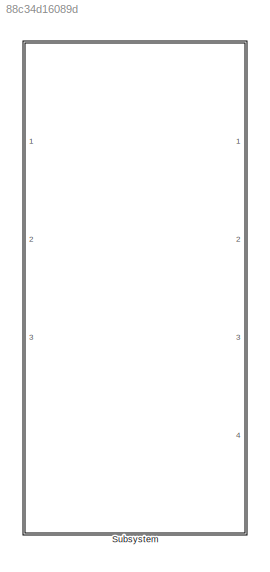
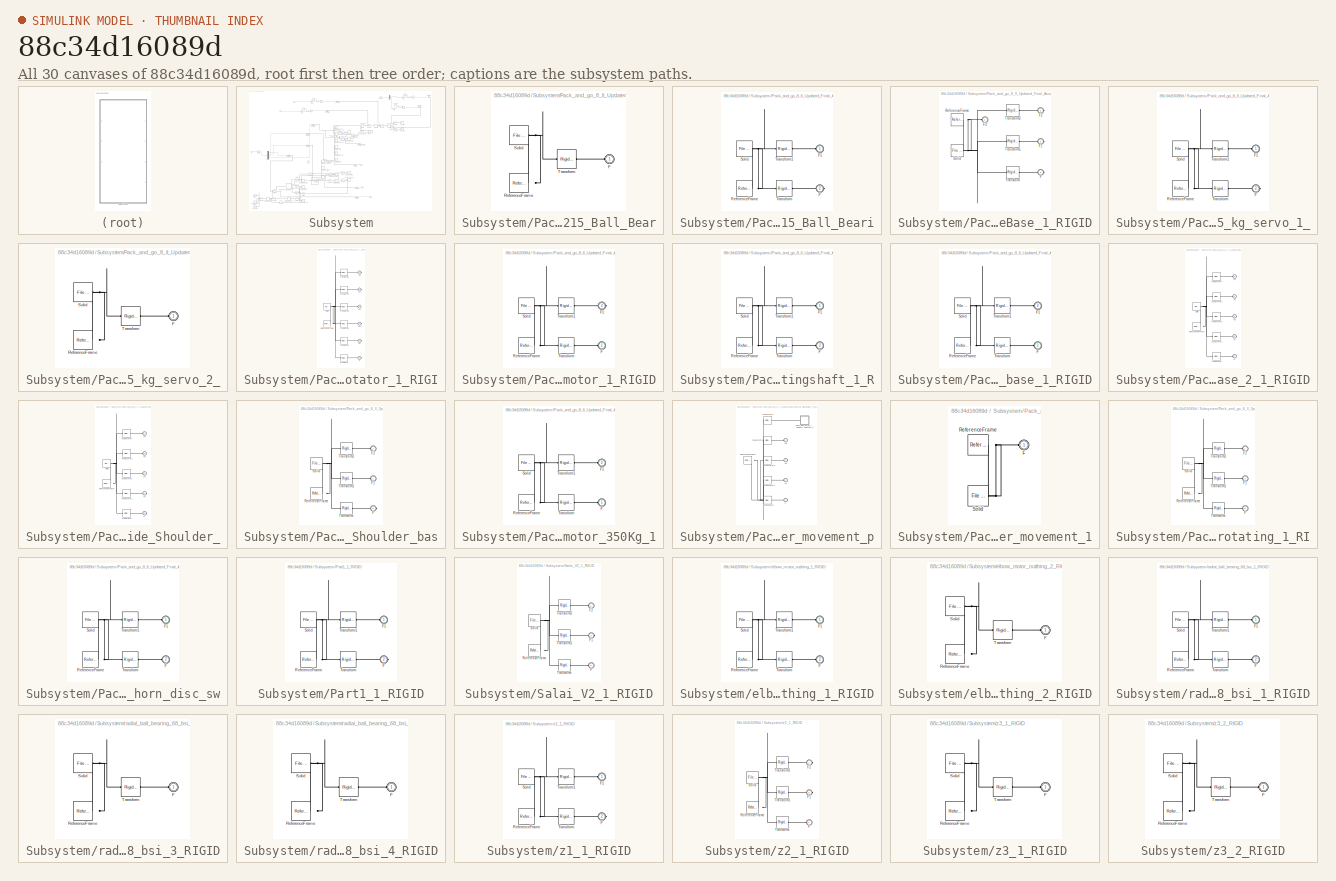
[diagram: thumbnail index - all 30 canvases of the model, root first then tree order]
MODEL slx_88c34d16089d
KIND model
CONFIG AbsTol = auto
CONFIG EnableMultiTasking = off
CONFIG FixedStep = auto
CONFIG MaxStep = auto
CONFIG MinStep = auto
CONFIG RelTol = 1e-3
CONFIG SampleTimeConstraint = Unconstrained
CONFIG SolverName = VariableStepAuto
CONFIG StartTime = 0.0
CONFIG StopTime = 10.0
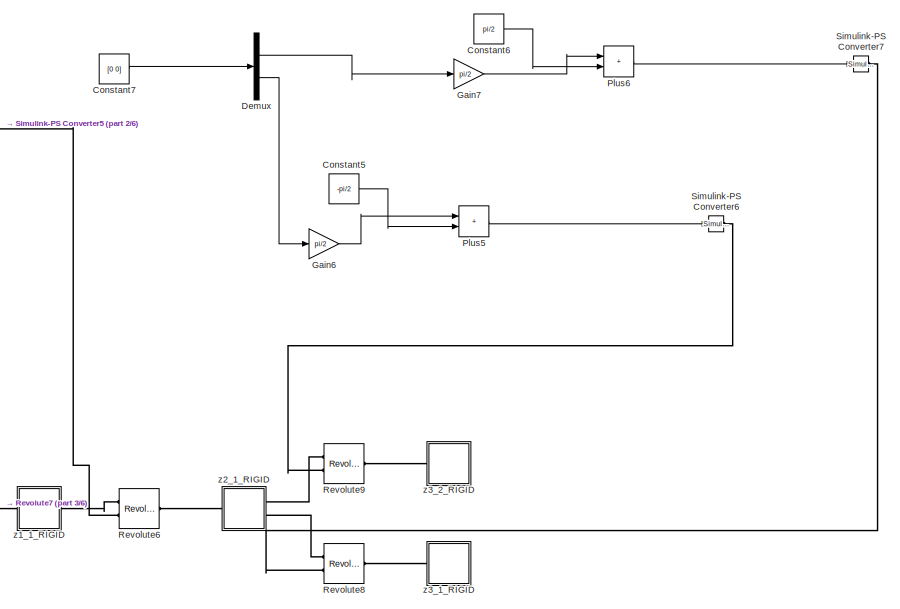
[diagram: Subsystem - part 1/6, top right region]
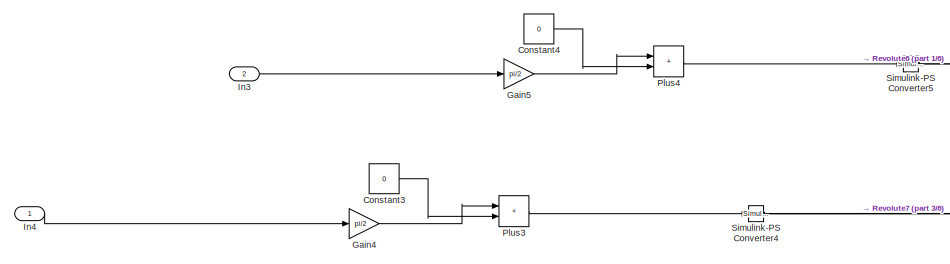
[diagram: Subsystem - part 2/6, top left region]
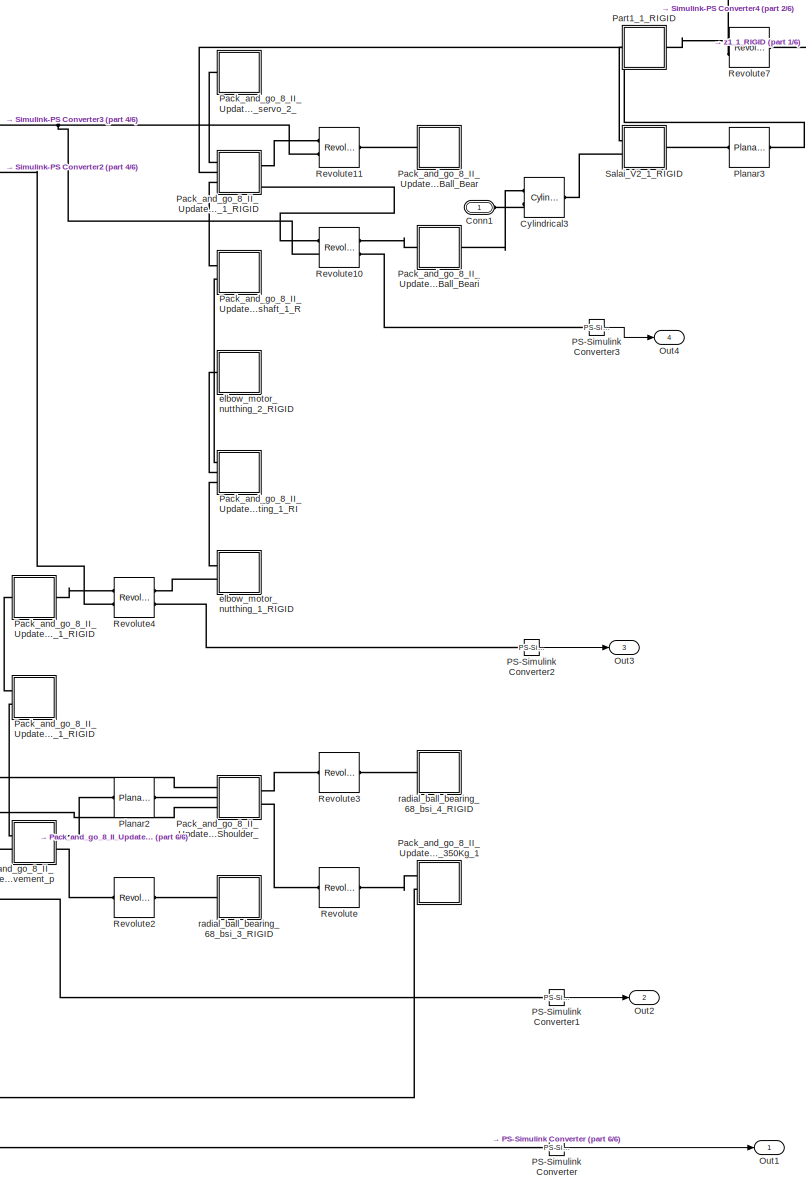
[diagram: Subsystem - part 3/6, central region]
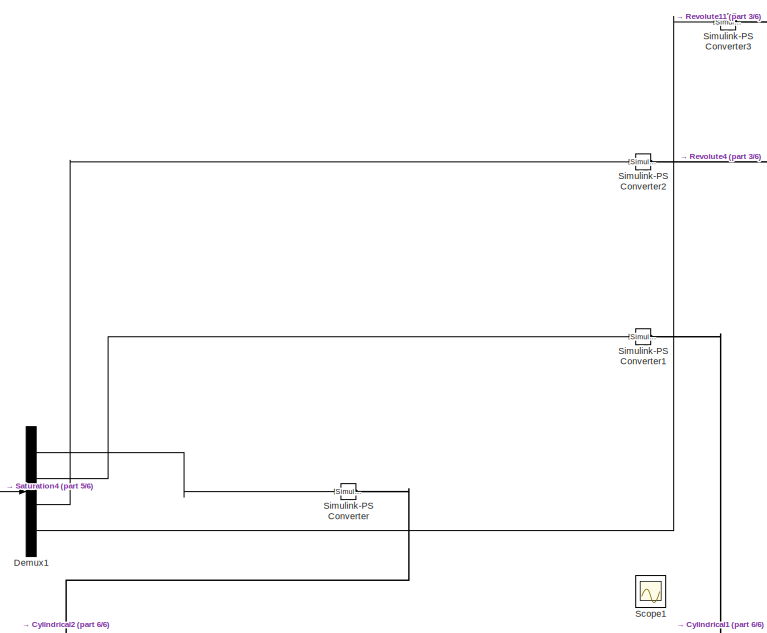
[diagram: Subsystem - part 4/6, middle left region]
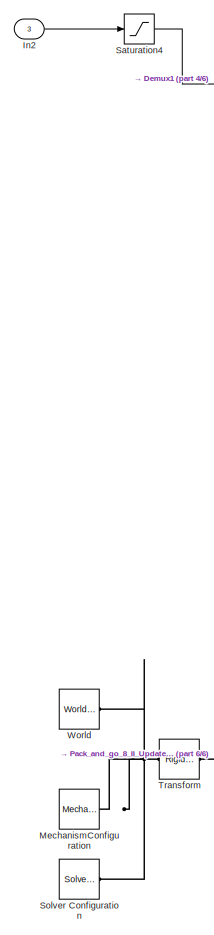
[diagram: Subsystem - part 5/6, bottom left region]
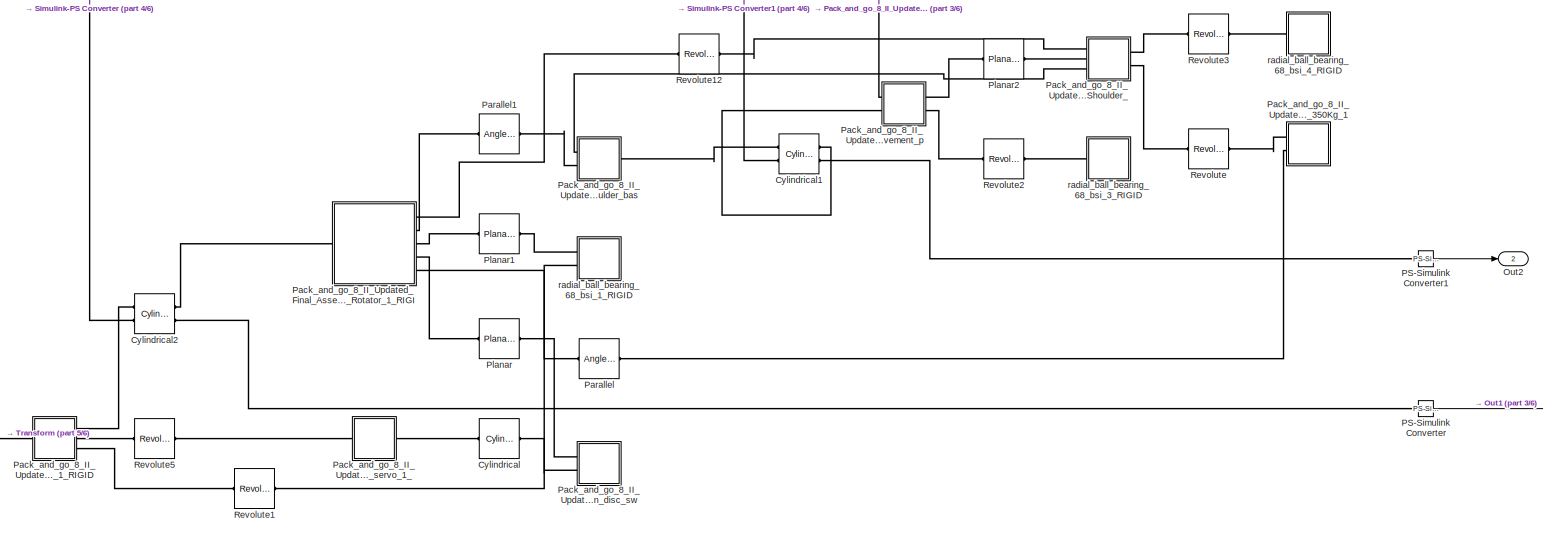
[diagram: Subsystem - part 6/6, bottom center region]
BLOCK [SubSystem] Subsystem
  Ports = [3, 4, 0, 0, 0, 1]
  RequestExecContextInheritance = off
BLOCK [PMIOPort] Subsystem/Conn1
  Side = Left
BLOCK [Constant] Subsystem/Constant3
  Value = 0
BLOCK [Constant] Subsystem/Constant4
  Value = 0
BLOCK [Constant] Subsystem/Constant5
  Value = -pi/2
BLOCK [Constant] Subsystem/Constant6
  Value = pi/2
BLOCK [Constant] Subsystem/Constant7
  Value = [0 0]
BLOCK [Reference] Subsystem/Cylindrical  REF=sm_lib/Joints/Cylindrical
Joint
  Ports = [0, 0, 0, 0, 0, 1, 1]
  SourceBlock = sm_lib/Joints/Cylindrical\nJoint
  SourceProductBaseCode = MS
  SourceType = Cylindrical\nJoint
BLOCK [Reference] Subsystem/Cylindrical1  REF=sm_lib/Joints/Cylindrical
Joint
  Ports = [0, 0, 0, 0, 0, 2, 2]
  SourceBlock = sm_lib/Joints/Cylindrical\nJoint
  SourceProductBaseCode = MS
  SourceType = Cylindrical\nJoint
BLOCK [Reference] Subsystem/Cylindrical2  REF=sm_lib/Joints/Cylindrical
Joint
  Ports = [0, 0, 0, 0, 0, 2, 2]
  SourceBlock = sm_lib/Joints/Cylindrical\nJoint
  SourceProductBaseCode = MS
  SourceType = Cylindrical\nJoint
BLOCK [Reference] Subsystem/Cylindrical3  REF=sm_lib/Joints/Cylindrical
Joint
  Ports = [0, 0, 0, 0, 0, 2, 1]
  SourceBlock = sm_lib/Joints/Cylindrical\nJoint
  SourceProductBaseCode = MS
  SourceType = Cylindrical\nJoint
BLOCK [Demux] Subsystem/Demux
  Outputs = 2
  Ports = [1, 2]
BLOCK [Demux] Subsystem/Demux1
  Ports = [1, 4]
BLOCK [Gain] Subsystem/Gain4
  Gain = pi/2
BLOCK [Gain] Subsystem/Gain5
  Gain = pi/2
BLOCK [Gain] Subsystem/Gain6
  Gain = pi/2
BLOCK [Gain] Subsystem/Gain7
  Gain = pi/2
BLOCK [Inport] Subsystem/In2
  Port = 3
BLOCK [Inport] Subsystem/In3
  Port = 2
BLOCK [Inport] Subsystem/In4
BLOCK [Reference] Subsystem/MechanismConfiguration  REF=sm_lib/Utilities/Mechanism
Configuration
  Ports = [0, 0, 0, 0, 0, 0, 1]
  SourceBlock = sm_lib/Utilities/Mechanism\nConfiguration
  SourceProductBaseCode = MS
  SourceType = Mechanism\nConfiguration
BLOCK [Outport] Subsystem/Out1
BLOCK [Outport] Subsystem/Out2
  Port = 2
BLOCK [Outport] Subsystem/Out3
  Port = 3
BLOCK [Outport] Subsystem/Out4
  Port = 4
BLOCK [Reference] Subsystem/PS-Simulink Converter  REF=nesl_utility/PS-Simulink
Converter
  Ports = [0, 1, 0, 0, 0, 1]
  SourceBlock = nesl_utility/PS-Simulink\nConverter
  SourceProductBaseCode = PW,SS
  SourceType = PS-Simulink\nConverter
BLOCK [Reference] Subsystem/PS-Simulink Converter1  REF=nesl_utility/PS-Simulink
Converter
  Ports = [0, 1, 0, 0, 0, 1]
  SourceBlock = nesl_utility/PS-Simulink\nConverter
  SourceProductBaseCode = PW,SS
  SourceType = PS-Simulink\nConverter
BLOCK [Reference] Subsystem/PS-Simulink Converter2  REF=nesl_utility/PS-Simulink
Converter
  Ports = [0, 1, 0, 0, 0, 1]
  SourceBlock = nesl_utility/PS-Simulink\nConverter
  SourceProductBaseCode = PW,SS
  SourceType = PS-Simulink\nConverter
BLOCK [Reference] Subsystem/PS-Simulink Converter3  REF=nesl_utility/PS-Simulink
Converter
  Ports = [0, 1, 0, 0, 0, 1]
  SourceBlock = nesl_utility/PS-Simulink\nConverter
  SourceProductBaseCode = PW,SS
  SourceType = PS-Simulink\nConverter
BLOCK [SubSystem] Subsystem/Pack_and_go_8_II_Updated_Final_Assembly_File5972K215_Ball_Bear
  Ports = [0, 0, 0, 0, 0, 1]
  RequestExecContextInheritance = off
BLOCK [PMIOPort] Subsystem/Pack_and_go_8_II_Updated_Final_Assembly_File5972K215_Ball_Bear/F
  Side = Left
BLOCK [Reference] Subsystem/Pack_and_go_8_II_Updated_Final_Assembly_File5972K215_Ball_Bear/ReferenceFrame  REF=sm_lib/Frames and
Transforms/Reference
Frame
  Ports = [0, 0, 0, 0, 0, 0, 1]
  SourceBlock = sm_lib/Frames and\nTransforms/Reference\nFrame
  SourceProductBaseCode = MS
  SourceType = Reference\nFrame
BLOCK [Reference] Subsystem/Pack_and_go_8_II_Updated_Final_Assembly_File5972K215_Ball_Bear/Solid  REF=sm_lib/Body Elements/File Solid
  Ports = [0, 0, 0, 0, 0, 0, 1]
  SourceBlock = sm_lib/Body Elements/File Solid
  SourceProductBaseCode = MS
  SourceType = File Solid
BLOCK [Reference] Subsystem/Pack_and_go_8_II_Updated_Final_Assembly_File5972K215_Ball_Bear/Transform  REF=sm_lib/Frames and
Transforms/Rigid
Transform
  Ports = [0, 0, 0, 0, 0, 1, 1]
  SourceBlock = sm_lib/Frames and\nTransforms/Rigid\nTransform
  SourceProductBaseCode = MS
  SourceType = Rigid\nTransform
BLOCK [SubSystem] Subsystem/Pack_and_go_8_II_Updated_Final_Assembly_File5972K215_Ball_Beari
  Ports = [0, 0, 0, 0, 0, 1, 1]
  RequestExecContextInheritance = off
BLOCK [PMIOPort] Subsystem/Pack_and_go_8_II_Updated_Final_Assembly_File5972K215_Ball_Beari/F
  Port = 2
  Side = Right
BLOCK [PMIOPort] Subsystem/Pack_and_go_8_II_Updated_Final_Assembly_File5972K215_Ball_Beari/F1
  Side = Left
BLOCK [Reference] Subsystem/Pack_and_go_8_II_Updated_Final_Assembly_File5972K215_Ball_Beari/ReferenceFrame  REF=sm_lib/Frames and
Transforms/Reference
Frame
  Ports = [0, 0, 0, 0, 0, 0, 1]
  SourceBlock = sm_lib/Frames and\nTransforms/Reference\nFrame
  SourceProductBaseCode = MS
  SourceType = Reference\nFrame
BLOCK [Reference] Subsystem/Pack_and_go_8_II_Updated_Final_Assembly_File5972K215_Ball_Beari/Solid  REF=sm_lib/Body Elements/File Solid
  Ports = [0, 0, 0, 0, 0, 0, 1]
  SourceBlock = sm_lib/Body Elements/File Solid
  SourceProductBaseCode = MS
  SourceType = File Solid
BLOCK [Reference] Subsystem/Pack_and_go_8_II_Updated_Final_Assembly_File5972K215_Ball_Beari/Transform  REF=sm_lib/Frames and
Transforms/Rigid
Transform
  Ports = [0, 0, 0, 0, 0, 1, 1]
  SourceBlock = sm_lib/Frames and\nTransforms/Rigid\nTransform
  SourceProductBaseCode = MS
  SourceType = Rigid\nTransform
BLOCK [Reference] Subsystem/Pack_and_go_8_II_Updated_Final_Assembly_File5972K215_Ball_Beari/Transform1  REF=sm_lib/Frames and
Transforms/Rigid
Transform
  Ports = [0, 0, 0, 0, 0, 1, 1]
  SourceBlock = sm_lib/Frames and\nTransforms/Rigid\nTransform
  SourceProductBaseCode = MS
  SourceType = Rigid\nTransform
BLOCK [SubSystem] Subsystem/Pack_and_go_8_II_Updated_Final_Assembly_FileBase_1_RIGID
  Ports = [0, 0, 0, 0, 0, 1, 3]
  RequestExecContextInheritance = off
BLOCK [PMIOPort] Subsystem/Pack_and_go_8_II_Updated_Final_Assembly_FileBase_1_RIGID/F
  Port = 4
  Side = Right
BLOCK [PMIOPort] Subsystem/Pack_and_go_8_II_Updated_Final_Assembly_FileBase_1_RIGID/F1
  Port = 3
  Side = Right
BLOCK [PMIOPort] Subsystem/Pack_and_go_8_II_Updated_Final_Assembly_FileBase_1_RIGID/F2
  Port = 2
  Side = Right
BLOCK [PMIOPort] Subsystem/Pack_and_go_8_II_Updated_Final_Assembly_FileBase_1_RIGID/F3
  Side = Left
BLOCK [Reference] Subsystem/Pack_and_go_8_II_Updated_Final_Assembly_FileBase_1_RIGID/ReferenceFrame  REF=sm_lib/Frames and
Transforms/Reference
Frame
  Ports = [0, 0, 0, 0, 0, 0, 1]
  SourceBlock = sm_lib/Frames and\nTransforms/Reference\nFrame
  SourceProductBaseCode = MS
  SourceType = Reference\nFrame
BLOCK [Reference] Subsystem/Pack_and_go_8_II_Updated_Final_Assembly_FileBase_1_RIGID/Solid  REF=sm_lib/Body Elements/File Solid
  Ports = [0, 0, 0, 0, 0, 0, 1]
  SourceBlock = sm_lib/Body Elements/File Solid
  SourceProductBaseCode = MS
  SourceType = File Solid
BLOCK [Reference] Subsystem/Pack_and_go_8_II_Updated_Final_Assembly_FileBase_1_RIGID/Transform  REF=sm_lib/Frames and
Transforms/Rigid
Transform
  Ports = [0, 0, 0, 0, 0, 1, 1]
  SourceBlock = sm_lib/Frames and\nTransforms/Rigid\nTransform
  SourceProductBaseCode = MS
  SourceType = Rigid\nTransform
BLOCK [Reference] Subsystem/Pack_and_go_8_II_Updated_Final_Assembly_FileBase_1_RIGID/Transform1  REF=sm_lib/Frames and
Transforms/Rigid
Transform
  Ports = [0, 0, 0, 0, 0, 1, 1]
  SourceBlock = sm_lib/Frames and\nTransforms/Rigid\nTransform
  SourceProductBaseCode = MS
  SourceType = Rigid\nTransform
BLOCK [Reference] Subsystem/Pack_and_go_8_II_Updated_Final_Assembly_FileBase_1_RIGID/Transform2  REF=sm_lib/Frames and
Transforms/Rigid
Transform
  Ports = [0, 0, 0, 0, 0, 1, 1]
  SourceBlock = sm_lib/Frames and\nTransforms/Rigid\nTransform
  SourceProductBaseCode = MS
  SourceType = Rigid\nTransform
BLOCK [SubSystem] Subsystem/Pack_and_go_8_II_Updated_Final_Assembly_FileBase_45_kg_servo_1_
  Ports = [0, 0, 0, 0, 0, 1, 1]
  RequestExecContextInheritance = off
BLOCK [PMIOPort] Subsystem/Pack_and_go_8_II_Updated_Final_Assembly_FileBase_45_kg_servo_1_/F
  Port = 2
  Side = Right
BLOCK [PMIOPort] Subsystem/Pack_and_go_8_II_Updated_Final_Assembly_FileBase_45_kg_servo_1_/F1
  Side = Left
BLOCK [Reference] Subsystem/Pack_and_go_8_II_Updated_Final_Assembly_FileBase_45_kg_servo_1_/ReferenceFrame  REF=sm_lib/Frames and
Transforms/Reference
Frame
  Ports = [0, 0, 0, 0, 0, 0, 1]
  SourceBlock = sm_lib/Frames and\nTransforms/Reference\nFrame
  SourceProductBaseCode = MS
  SourceType = Reference\nFrame
BLOCK [Reference] Subsystem/Pack_and_go_8_II_Updated_Final_Assembly_FileBase_45_kg_servo_1_/Solid  REF=sm_lib/Body Elements/File Solid
  Ports = [0, 0, 0, 0, 0, 0, 1]
  SourceBlock = sm_lib/Body Elements/File Solid
  SourceProductBaseCode = MS
  SourceType = File Solid
BLOCK [Reference] Subsystem/Pack_and_go_8_II_Updated_Final_Assembly_FileBase_45_kg_servo_1_/Transform  REF=sm_lib/Frames and
Transforms/Rigid
Transform
  Ports = [0, 0, 0, 0, 0, 1, 1]
  SourceBlock = sm_lib/Frames and\nTransforms/Rigid\nTransform
  SourceProductBaseCode = MS
  SourceType = Rigid\nTransform
BLOCK [Reference] Subsystem/Pack_and_go_8_II_Updated_Final_Assembly_FileBase_45_kg_servo_1_/Transform1  REF=sm_lib/Frames and
Transforms/Rigid
Transform
  Ports = [0, 0, 0, 0, 0, 1, 1]
  SourceBlock = sm_lib/Frames and\nTransforms/Rigid\nTransform
  SourceProductBaseCode = MS
  SourceType = Rigid\nTransform
BLOCK [SubSystem] Subsystem/Pack_and_go_8_II_Updated_Final_Assembly_FileBase_45_kg_servo_2_
  Ports = [0, 0, 0, 0, 0, 1]
  RequestExecContextInheritance = off
BLOCK [PMIOPort] Subsystem/Pack_and_go_8_II_Updated_Final_Assembly_FileBase_45_kg_servo_2_/F
  Side = Left
BLOCK [Reference] Subsystem/Pack_and_go_8_II_Updated_Final_Assembly_FileBase_45_kg_servo_2_/ReferenceFrame  REF=sm_lib/Frames and
Transforms/Reference
Frame
  Ports = [0, 0, 0, 0, 0, 0, 1]
  SourceBlock = sm_lib/Frames and\nTransforms/Reference\nFrame
  SourceProductBaseCode = MS
  SourceType = Reference\nFrame
BLOCK [Reference] Subsystem/Pack_and_go_8_II_Updated_Final_Assembly_FileBase_45_kg_servo_2_/Solid  REF=sm_lib/Body Elements/File Solid
  Ports = [0, 0, 0, 0, 0, 0, 1]
  SourceBlock = sm_lib/Body Elements/File Solid
  SourceProductBaseCode = MS
  SourceType = File Solid
BLOCK [Reference] Subsystem/Pack_and_go_8_II_Updated_Final_Assembly_FileBase_45_kg_servo_2_/Transform  REF=sm_lib/Frames and
Transforms/Rigid
Transform
  Ports = [0, 0, 0, 0, 0, 1, 1]
  SourceBlock = sm_lib/Frames and\nTransforms/Rigid\nTransform
  SourceProductBaseCode = MS
  SourceType = Rigid\nTransform
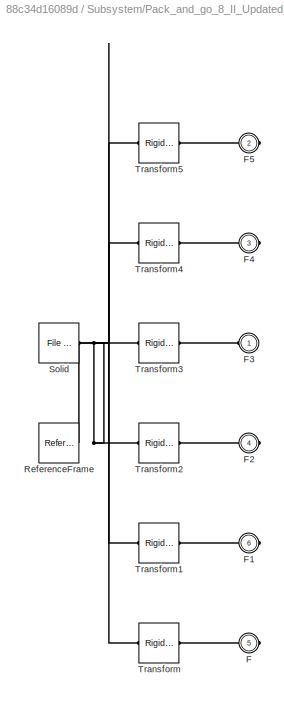
BLOCK [SubSystem] Subsystem/Pack_and_go_8_II_Updated_Final_Assembly_FileBase_Rotator_1_RIGI
  Ports = [0, 0, 0, 0, 0, 1, 5]
  RequestExecContextInheritance = off
BLOCK [PMIOPort] Subsystem/Pack_and_go_8_II_Updated_Final_Assembly_FileBase_Rotator_1_RIGI/F
  Port = 5
  Side = Right
BLOCK [PMIOPort] Subsystem/Pack_and_go_8_II_Updated_Final_Assembly_FileBase_Rotator_1_RIGI/F1
  Port = 6
  Side = Right
BLOCK [PMIOPort] Subsystem/Pack_and_go_8_II_Updated_Final_Assembly_FileBase_Rotator_1_RIGI/F2
  Port = 4
  Side = Right
BLOCK [PMIOPort] Subsystem/Pack_and_go_8_II_Updated_Final_Assembly_FileBase_Rotator_1_RIGI/F3
  Side = Left
BLOCK [PMIOPort] Subsystem/Pack_and_go_8_II_Updated_Final_Assembly_FileBase_Rotator_1_RIGI/F4
  Port = 3
  Side = Right
BLOCK [PMIOPort] Subsystem/Pack_and_go_8_II_Updated_Final_Assembly_FileBase_Rotator_1_RIGI/F5
  Port = 2
  Side = Right
BLOCK [Reference] Subsystem/Pack_and_go_8_II_Updated_Final_Assembly_FileBase_Rotator_1_RIGI/ReferenceFrame  REF=sm_lib/Frames and
Transforms/Reference
Frame
  Ports = [0, 0, 0, 0, 0, 0, 1]
  SourceBlock = sm_lib/Frames and\nTransforms/Reference\nFrame
  SourceProductBaseCode = MS
  SourceType = Reference\nFrame
BLOCK [Reference] Subsystem/Pack_and_go_8_II_Updated_Final_Assembly_FileBase_Rotator_1_RIGI/Solid  REF=sm_lib/Body Elements/File Solid
  Ports = [0, 0, 0, 0, 0, 0, 1]
  SourceBlock = sm_lib/Body Elements/File Solid
  SourceProductBaseCode = MS
  SourceType = File Solid
BLOCK [Reference] Subsystem/Pack_and_go_8_II_Updated_Final_Assembly_FileBase_Rotator_1_RIGI/Transform  REF=sm_lib/Frames and
Transforms/Rigid
Transform
  Ports = [0, 0, 0, 0, 0, 1, 1]
  SourceBlock = sm_lib/Frames and\nTransforms/Rigid\nTransform
  SourceProductBaseCode = MS
  SourceType = Rigid\nTransform
BLOCK [Reference] Subsystem/Pack_and_go_8_II_Updated_Final_Assembly_FileBase_Rotator_1_RIGI/Transform1  REF=sm_lib/Frames and
Transforms/Rigid
Transform
  Ports = [0, 0, 0, 0, 0, 1, 1]
  SourceBlock = sm_lib/Frames and\nTransforms/Rigid\nTransform
  SourceProductBaseCode = MS
  SourceType = Rigid\nTransform
BLOCK [Reference] Subsystem/Pack_and_go_8_II_Updated_Final_Assembly_FileBase_Rotator_1_RIGI/Transform2  REF=sm_lib/Frames and
Transforms/Rigid
Transform
  Ports = [0, 0, 0, 0, 0, 1, 1]
  SourceBlock = sm_lib/Frames and\nTransforms/Rigid\nTransform
  SourceProductBaseCode = MS
  SourceType = Rigid\nTransform
BLOCK [Reference] Subsystem/Pack_and_go_8_II_Updated_Final_Assembly_FileBase_Rotator_1_RIGI/Transform3  REF=sm_lib/Frames and
Transforms/Rigid
Transform
  Ports = [0, 0, 0, 0, 0, 1, 1]
  SourceBlock = sm_lib/Frames and\nTransforms/Rigid\nTransform
  SourceProductBaseCode = MS
  SourceType = Rigid\nTransform
BLOCK [Reference] Subsystem/Pack_and_go_8_II_Updated_Final_Assembly_FileBase_Rotator_1_RIGI/Transform4  REF=sm_lib/Frames and
Transforms/Rigid
Transform
  Ports = [0, 0, 0, 0, 0, 1, 1]
  SourceBlock = sm_lib/Frames and\nTransforms/Rigid\nTransform
  SourceProductBaseCode = MS
  SourceType = Rigid\nTransform
BLOCK [Reference] Subsystem/Pack_and_go_8_II_Updated_Final_Assembly_FileBase_Rotator_1_RIGI/Transform5  REF=sm_lib/Frames and
Transforms/Rigid
Transform
  Ports = [0, 0, 0, 0, 0, 1, 1]
  SourceBlock = sm_lib/Frames and\nTransforms/Rigid\nTransform
  SourceProductBaseCode = MS
  SourceType = Rigid\nTransform
BLOCK [SubSystem] Subsystem/Pack_and_go_8_II_Updated_Final_Assembly_FileBase_motor_1_RIGID
  Ports = [0, 0, 0, 0, 0, 1, 1]
  RequestExecContextInheritance = off
BLOCK [PMIOPort] Subsystem/Pack_and_go_8_II_Updated_Final_Assembly_FileBase_motor_1_RIGID/F
  Side = Left
BLOCK [PMIOPort] Subsystem/Pack_and_go_8_II_Updated_Final_Assembly_FileBase_motor_1_RIGID/F1
  Port = 2
  Side = Right
BLOCK [Reference] Subsystem/Pack_and_go_8_II_Updated_Final_Assembly_FileBase_motor_1_RIGID/ReferenceFrame  REF=sm_lib/Frames and
Transforms/Reference
Frame
  Ports = [0, 0, 0, 0, 0, 0, 1]
  SourceBlock = sm_lib/Frames and\nTransforms/Reference\nFrame
  SourceProductBaseCode = MS
  SourceType = Reference\nFrame
BLOCK [Reference] Subsystem/Pack_and_go_8_II_Updated_Final_Assembly_FileBase_motor_1_RIGID/Solid  REF=sm_lib/Body Elements/File Solid
  Ports = [0, 0, 0, 0, 0, 0, 1]
  SourceBlock = sm_lib/Body Elements/File Solid
  SourceProductBaseCode = MS
  SourceType = File Solid
BLOCK [Reference] Subsystem/Pack_and_go_8_II_Updated_Final_Assembly_FileBase_motor_1_RIGID/Transform  REF=sm_lib/Frames and
Transforms/Rigid
Transform
  Ports = [0, 0, 0, 0, 0, 1, 1]
  SourceBlock = sm_lib/Frames and\nTransforms/Rigid\nTransform
  SourceProductBaseCode = MS
  SourceType = Rigid\nTransform
BLOCK [Reference] Subsystem/Pack_and_go_8_II_Updated_Final_Assembly_FileBase_motor_1_RIGID/Transform1  REF=sm_lib/Frames and
Transforms/Rigid
Transform
  Ports = [0, 0, 0, 0, 0, 1, 1]
  SourceBlock = sm_lib/Frames and\nTransforms/Rigid\nTransform
  SourceProductBaseCode = MS
  SourceType = Rigid\nTransform
BLOCK [SubSystem] Subsystem/Pack_and_go_8_II_Updated_Final_Assembly_FileConnectingshaft_1_R
  Ports = [0, 0, 0, 0, 0, 2]
  RequestExecContextInheritance = off
BLOCK [PMIOPort] Subsystem/Pack_and_go_8_II_Updated_Final_Assembly_FileConnectingshaft_1_R/F
  Port = 2
  Side = Left
BLOCK [PMIOPort] Subsystem/Pack_and_go_8_II_Updated_Final_Assembly_FileConnectingshaft_1_R/F1
  Side = Left
BLOCK [Reference] Subsystem/Pack_and_go_8_II_Updated_Final_Assembly_FileConnectingshaft_1_R/ReferenceFrame  REF=sm_lib/Frames and
Transforms/Reference
Frame
  Ports = [0, 0, 0, 0, 0, 0, 1]
  SourceBlock = sm_lib/Frames and\nTransforms/Reference\nFrame
  SourceProductBaseCode = MS
  SourceType = Reference\nFrame
BLOCK [Reference] Subsystem/Pack_and_go_8_II_Updated_Final_Assembly_FileConnectingshaft_1_R/Solid  REF=sm_lib/Body Elements/File Solid
  Ports = [0, 0, 0, 0, 0, 0, 1]
  SourceBlock = sm_lib/Body Elements/File Solid
  SourceProductBaseCode = MS
  SourceType = File Solid
BLOCK [Reference] Subsystem/Pack_and_go_8_II_Updated_Final_Assembly_FileConnectingshaft_1_R/Transform  REF=sm_lib/Frames and
Transforms/Rigid
Transform
  Ports = [0, 0, 0, 0, 0, 1, 1]
  SourceBlock = sm_lib/Frames and\nTransforms/Rigid\nTransform
  SourceProductBaseCode = MS
  SourceType = Rigid\nTransform
BLOCK [Reference] Subsystem/Pack_and_go_8_II_Updated_Final_Assembly_FileConnectingshaft_1_R/Transform1  REF=sm_lib/Frames and
Transforms/Rigid
Transform
  Ports = [0, 0, 0, 0, 0, 1, 1]
  SourceBlock = sm_lib/Frames and\nTransforms/Rigid\nTransform
  SourceProductBaseCode = MS
  SourceType = Rigid\nTransform
BLOCK [SubSystem] Subsystem/Pack_and_go_8_II_Updated_Final_Assembly_FileElbow_base_1_RIGID
  Ports = [0, 0, 0, 0, 0, 2]
  RequestExecContextInheritance = off
BLOCK [PMIOPort] Subsystem/Pack_and_go_8_II_Updated_Final_Assembly_FileElbow_base_1_RIGID/F
  Side = Left
BLOCK [PMIOPort] Subsystem/Pack_and_go_8_II_Updated_Final_Assembly_FileElbow_base_1_RIGID/F1
  Port = 2
  Side = Left
BLOCK [Reference] Subsystem/Pack_and_go_8_II_Updated_Final_Assembly_FileElbow_base_1_RIGID/ReferenceFrame  REF=sm_lib/Frames and
Transforms/Reference
Frame
  Ports = [0, 0, 0, 0, 0, 0, 1]
  SourceBlock = sm_lib/Frames and\nTransforms/Reference\nFrame
  SourceProductBaseCode = MS
  SourceType = Reference\nFrame
BLOCK [Reference] Subsystem/Pack_and_go_8_II_Updated_Final_Assembly_FileElbow_base_1_RIGID/Solid  REF=sm_lib/Body Elements/File Solid
  Ports = [0, 0, 0, 0, 0, 0, 1]
  SourceBlock = sm_lib/Body Elements/File Solid
  SourceProductBaseCode = MS
  SourceType = File Solid
BLOCK [Reference] Subsystem/Pack_and_go_8_II_Updated_Final_Assembly_FileElbow_base_1_RIGID/Transform  REF=sm_lib/Frames and
Transforms/Rigid
Transform
  Ports = [0, 0, 0, 0, 0, 1, 1]
  SourceBlock = sm_lib/Frames and\nTransforms/Rigid\nTransform
  SourceProductBaseCode = MS
  SourceType = Rigid\nTransform
BLOCK [Reference] Subsystem/Pack_and_go_8_II_Updated_Final_Assembly_FileElbow_base_1_RIGID/Transform1  REF=sm_lib/Frames and
Transforms/Rigid
Transform
  Ports = [0, 0, 0, 0, 0, 1, 1]
  SourceBlock = sm_lib/Frames and\nTransforms/Rigid\nTransform
  SourceProductBaseCode = MS
  SourceType = Rigid\nTransform
BLOCK [SubSystem] Subsystem/Pack_and_go_8_II_Updated_Final_Assembly_FileEnd_base_2_1_RIGID
  Ports = [0, 0, 0, 0, 0, 3, 2]
  RequestExecContextInheritance = off
BLOCK [PMIOPort] Subsystem/Pack_and_go_8_II_Updated_Final_Assembly_FileEnd_base_2_1_RIGID/F
  Port = 3
  Side = Left
BLOCK [PMIOPort] Subsystem/Pack_and_go_8_II_Updated_Final_Assembly_FileEnd_base_2_1_RIGID/F1
  Port = 5
  Side = Right
BLOCK [PMIOPort] Subsystem/Pack_and_go_8_II_Updated_Final_Assembly_FileEnd_base_2_1_RIGID/F2
  Port = 4
  Side = Right
BLOCK [PMIOPort] Subsystem/Pack_and_go_8_II_Updated_Final_Assembly_FileEnd_base_2_1_RIGID/F3
  Side = Left
BLOCK [PMIOPort] Subsystem/Pack_and_go_8_II_Updated_Final_Assembly_FileEnd_base_2_1_RIGID/F4
  Port = 2
  Side = Left
BLOCK [Reference] Subsystem/Pack_and_go_8_II_Updated_Final_Assembly_FileEnd_base_2_1_RIGID/ReferenceFrame  REF=sm_lib/Frames and
Transforms/Reference
Frame
  Ports = [0, 0, 0, 0, 0, 0, 1]
  SourceBlock = sm_lib/Frames and\nTransforms/Reference\nFrame
  SourceProductBaseCode = MS
  SourceType = Reference\nFrame
BLOCK [Reference] Subsystem/Pack_and_go_8_II_Updated_Final_Assembly_FileEnd_base_2_1_RIGID/Solid  REF=sm_lib/Body Elements/File Solid
  Ports = [0, 0, 0, 0, 0, 0, 1]
  SourceBlock = sm_lib/Body Elements/File Solid
  SourceProductBaseCode = MS
  SourceType = File Solid
BLOCK [Reference] Subsystem/Pack_and_go_8_II_Updated_Final_Assembly_FileEnd_base_2_1_RIGID/Transform  REF=sm_lib/Frames and
Transforms/Rigid
Transform
  Ports = [0, 0, 0, 0, 0, 1, 1]
  SourceBlock = sm_lib/Frames and\nTransforms/Rigid\nTransform
  SourceProductBaseCode = MS
  SourceType = Rigid\nTransform
BLOCK [Reference] Subsystem/Pack_and_go_8_II_Updated_Final_Assembly_FileEnd_base_2_1_RIGID/Transform1  REF=sm_lib/Frames and
Transforms/Rigid
Transform
  Ports = [0, 0, 0, 0, 0, 1, 1]
  SourceBlock = sm_lib/Frames and\nTransforms/Rigid\nTransform
  SourceProductBaseCode = MS
  SourceType = Rigid\nTransform
BLOCK [Reference] Subsystem/Pack_and_go_8_II_Updated_Final_Assembly_FileEnd_base_2_1_RIGID/Transform2  REF=sm_lib/Frames and
Transforms/Rigid
Transform
  Ports = [0, 0, 0, 0, 0, 1, 1]
  SourceBlock = sm_lib/Frames and\nTransforms/Rigid\nTransform
  SourceProductBaseCode = MS
  SourceType = Rigid\nTransform
BLOCK [Reference] Subsystem/Pack_and_go_8_II_Updated_Final_Assembly_FileEnd_base_2_1_RIGID/Transform3  REF=sm_lib/Frames and
Transforms/Rigid
Transform
  Ports = [0, 0, 0, 0, 0, 1, 1]
  SourceBlock = sm_lib/Frames and\nTransforms/Rigid\nTransform
  SourceProductBaseCode = MS
  SourceType = Rigid\nTransform
BLOCK [Reference] Subsystem/Pack_and_go_8_II_Updated_Final_Assembly_FileEnd_base_2_1_RIGID/Transform4  REF=sm_lib/Frames and
Transforms/Rigid
Transform
  Ports = [0, 0, 0, 0, 0, 1, 1]
  SourceBlock = sm_lib/Frames and\nTransforms/Rigid\nTransform
  SourceProductBaseCode = MS
  SourceType = Rigid\nTransform
BLOCK [SubSystem] Subsystem/Pack_and_go_8_II_Updated_Final_Assembly_FileLeft_side_Shoulder_
  Ports = [0, 0, 0, 0, 0, 3, 2]
  RequestExecContextInheritance = off
BLOCK [PMIOPort] Subsystem/Pack_and_go_8_II_Updated_Final_Assembly_FileLeft_side_Shoulder_/F
  Port = 5
  Side = Right
BLOCK [PMIOPort] Subsystem/Pack_and_go_8_II_Updated_Final_Assembly_FileLeft_side_Shoulder_/F1
  Port = 4
  Side = Right
BLOCK [PMIOPort] Subsystem/Pack_and_go_8_II_Updated_Final_Assembly_FileLeft_side_Shoulder_/F2
  Port = 3
  Side = Left
BLOCK [PMIOPort] Subsystem/Pack_and_go_8_II_Updated_Final_Assembly_FileLeft_side_Shoulder_/F3
  Port = 2
  Side = Left
BLOCK [PMIOPort] Subsystem/Pack_and_go_8_II_Updated_Final_Assembly_FileLeft_side_Shoulder_/F4
  Side = Left
BLOCK [Reference] Subsystem/Pack_and_go_8_II_Updated_Final_Assembly_FileLeft_side_Shoulder_/ReferenceFrame  REF=sm_lib/Frames and
Transforms/Reference
Frame
  Ports = [0, 0, 0, 0, 0, 0, 1]
  SourceBlock = sm_lib/Frames and\nTransforms/Reference\nFrame
  SourceProductBaseCode = MS
  SourceType = Reference\nFrame
BLOCK [Reference] Subsystem/Pack_and_go_8_II_Updated_Final_Assembly_FileLeft_side_Shoulder_/Solid  REF=sm_lib/Body Elements/File Solid
  Ports = [0, 0, 0, 0, 0, 0, 1]
  SourceBlock = sm_lib/Body Elements/File Solid
  SourceProductBaseCode = MS
  SourceType = File Solid
BLOCK [Reference] Subsystem/Pack_and_go_8_II_Updated_Final_Assembly_FileLeft_side_Shoulder_/Transform  REF=sm_lib/Frames and
Transforms/Rigid
Transform
  Ports = [0, 0, 0, 0, 0, 1, 1]
  SourceBlock = sm_lib/Frames and\nTransforms/Rigid\nTransform
  SourceProductBaseCode = MS
  SourceType = Rigid\nTransform
BLOCK [Reference] Subsystem/Pack_and_go_8_II_Updated_Final_Assembly_FileLeft_side_Shoulder_/Transform1  REF=sm_lib/Frames and
Transforms/Rigid
Transform
  Ports = [0, 0, 0, 0, 0, 1, 1]
  SourceBlock = sm_lib/Frames and\nTransforms/Rigid\nTransform
  SourceProductBaseCode = MS
  SourceType = Rigid\nTransform
BLOCK [Reference] Subsystem/Pack_and_go_8_II_Updated_Final_Assembly_FileLeft_side_Shoulder_/Transform2  REF=sm_lib/Frames and
Transforms/Rigid
Transform
  Ports = [0, 0, 0, 0, 0, 1, 1]
  SourceBlock = sm_lib/Frames and\nTransforms/Rigid\nTransform
  SourceProductBaseCode = MS
  SourceType = Rigid\nTransform
BLOCK [Reference] Subsystem/Pack_and_go_8_II_Updated_Final_Assembly_FileLeft_side_Shoulder_/Transform3  REF=sm_lib/Frames and
Transforms/Rigid
Transform
  Ports = [0, 0, 0, 0, 0, 1, 1]
  SourceBlock = sm_lib/Frames and\nTransforms/Rigid\nTransform
  SourceProductBaseCode = MS
  SourceType = Rigid\nTransform
BLOCK [Reference] Subsystem/Pack_and_go_8_II_Updated_Final_Assembly_FileLeft_side_Shoulder_/Transform4  REF=sm_lib/Frames and
Transforms/Rigid
Transform
  Ports = [0, 0, 0, 0, 0, 1, 1]
  SourceBlock = sm_lib/Frames and\nTransforms/Rigid\nTransform
  SourceProductBaseCode = MS
  SourceType = Rigid\nTransform
BLOCK [SubSystem] Subsystem/Pack_and_go_8_II_Updated_Final_Assembly_FileR_side_Shoulder_bas
  Ports = [0, 0, 0, 0, 0, 2, 1]
  RequestExecContextInheritance = off
BLOCK [PMIOPort] Subsystem/Pack_and_go_8_II_Updated_Final_Assembly_FileR_side_Shoulder_bas/F
  Port = 3
  Side = Right
BLOCK [PMIOPort] Subsystem/Pack_and_go_8_II_Updated_Final_Assembly_FileR_side_Shoulder_bas/F1
  Side = Left
BLOCK [PMIOPort] Subsystem/Pack_and_go_8_II_Updated_Final_Assembly_FileR_side_Shoulder_bas/F2
  Port = 2
  Side = Left
BLOCK [Reference] Subsystem/Pack_and_go_8_II_Updated_Final_Assembly_FileR_side_Shoulder_bas/ReferenceFrame  REF=sm_lib/Frames and
Transforms/Reference
Frame
  Ports = [0, 0, 0, 0, 0, 0, 1]
  SourceBlock = sm_lib/Frames and\nTransforms/Reference\nFrame
  SourceProductBaseCode = MS
  SourceType = Reference\nFrame
BLOCK [Reference] Subsystem/Pack_and_go_8_II_Updated_Final_Assembly_FileR_side_Shoulder_bas/Solid  REF=sm_lib/Body Elements/File Solid
  Ports = [0, 0, 0, 0, 0, 0, 1]
  SourceBlock = sm_lib/Body Elements/File Solid
  SourceProductBaseCode = MS
  SourceType = File Solid
BLOCK [Reference] Subsystem/Pack_and_go_8_II_Updated_Final_Assembly_FileR_side_Shoulder_bas/Transform  REF=sm_lib/Frames and
Transforms/Rigid
Transform
  Ports = [0, 0, 0, 0, 0, 1, 1]
  SourceBlock = sm_lib/Frames and\nTransforms/Rigid\nTransform
  SourceProductBaseCode = MS
  SourceType = Rigid\nTransform
BLOCK [Reference] Subsystem/Pack_and_go_8_II_Updated_Final_Assembly_FileR_side_Shoulder_bas/Transform1  REF=sm_lib/Frames and
Transforms/Rigid
Transform
  Ports = [0, 0, 0, 0, 0, 1, 1]
  SourceBlock = sm_lib/Frames and\nTransforms/Rigid\nTransform
  SourceProductBaseCode = MS
  SourceType = Rigid\nTransform
BLOCK [Reference] Subsystem/Pack_and_go_8_II_Updated_Final_Assembly_FileR_side_Shoulder_bas/Transform2  REF=sm_lib/Frames and
Transforms/Rigid
Transform
  Ports = [0, 0, 0, 0, 0, 1, 1]
  SourceBlock = sm_lib/Frames and\nTransforms/Rigid\nTransform
  SourceProductBaseCode = MS
  SourceType = Rigid\nTransform
BLOCK [SubSystem] Subsystem/Pack_and_go_8_II_Updated_Final_Assembly_FileServo_motor_350Kg_1
  Ports = [0, 0, 0, 0, 0, 2]
  RequestExecContextInheritance = off
BLOCK [PMIOPort] Subsystem/Pack_and_go_8_II_Updated_Final_Assembly_FileServo_motor_350Kg_1/F
  Side = Left
BLOCK [PMIOPort] Subsystem/Pack_and_go_8_II_Updated_Final_Assembly_FileServo_motor_350Kg_1/F1
  Port = 2
  Side = Left
BLOCK [Reference] Subsystem/Pack_and_go_8_II_Updated_Final_Assembly_FileServo_motor_350Kg_1/ReferenceFrame  REF=sm_lib/Frames and
Transforms/Reference
Frame
  Ports = [0, 0, 0, 0, 0, 0, 1]
  SourceBlock = sm_lib/Frames and\nTransforms/Reference\nFrame
  SourceProductBaseCode = MS
  SourceType = Reference\nFrame
BLOCK [Reference] Subsystem/Pack_and_go_8_II_Updated_Final_Assembly_FileServo_motor_350Kg_1/Solid  REF=sm_lib/Body Elements/File Solid
  Ports = [0, 0, 0, 0, 0, 0, 1]
  SourceBlock = sm_lib/Body Elements/File Solid
  SourceProductBaseCode = MS
  SourceType = File Solid
BLOCK [Reference] Subsystem/Pack_and_go_8_II_Updated_Final_Assembly_FileServo_motor_350Kg_1/Transform  REF=sm_lib/Frames and
Transforms/Rigid
Transform
  Ports = [0, 0, 0, 0, 0, 1, 1]
  SourceBlock = sm_lib/Frames and\nTransforms/Rigid\nTransform
  SourceProductBaseCode = MS
  SourceType = Rigid\nTransform
BLOCK [Reference] Subsystem/Pack_and_go_8_II_Updated_Final_Assembly_FileServo_motor_350Kg_1/Transform1  REF=sm_lib/Frames and
Transforms/Rigid
Transform
  Ports = [0, 0, 0, 0, 0, 1, 1]
  SourceBlock = sm_lib/Frames and\nTransforms/Rigid\nTransform
  SourceProductBaseCode = MS
  SourceType = Rigid\nTransform
BLOCK [SubSystem] Subsystem/Pack_and_go_8_II_Updated_Final_Assembly_FileShoulder_movement_p
  Ports = [0, 0, 0, 0, 0, 2, 2]
  RequestExecContextInheritance = off
BLOCK [PMIOPort] Subsystem/Pack_and_go_8_II_Updated_Final_Assembly_FileShoulder_movement_p/F
  Port = 4
  Side = Right
BLOCK [PMIOPort] Subsystem/Pack_and_go_8_II_Updated_Final_Assembly_FileShoulder_movement_p/F1
  Port = 2
  Side = Left
BLOCK [PMIOPort] Subsystem/Pack_and_go_8_II_Updated_Final_Assembly_FileShoulder_movement_p/F2
  Port = 3
  Side = Right
BLOCK [PMIOPort] Subsystem/Pack_and_go_8_II_Updated_Final_Assembly_FileShoulder_movement_p/F3
  Side = Left
BLOCK [SubSystem] Subsystem/Pack_and_go_8_II_Updated_Final_Assembly_FileShoulder_movement_p/Pack_and_go_8_II_Updated_Final_Assembly_FileShoulder_movement_1
  Ports = [0, 0, 0, 0, 0, 1]
  RequestExecContextInheritance = off
BLOCK [PMIOPort] Subsystem/Pack_and_go_8_II_Updated_Final_Assembly_FileShoulder_movement_p/Pack_and_go_8_II_Updated_Final_Assembly_FileShoulder_movement_1/F
  Side = Left
BLOCK [Reference] Subsystem/Pack_and_go_8_II_Updated_Final_Assembly_FileShoulder_movement_p/Pack_and_go_8_II_Updated_Final_Assembly_FileShoulder_movement_1/ReferenceFrame  REF=sm_lib/Frames and
Transforms/Reference
Frame
  Ports = [0, 0, 0, 0, 0, 0, 1]
  SourceBlock = sm_lib/Frames and\nTransforms/Reference\nFrame
  SourceProductBaseCode = MS
  SourceType = Reference\nFrame
BLOCK [Reference] Subsystem/Pack_and_go_8_II_Updated_Final_Assembly_FileShoulder_movement_p/Pack_and_go_8_II_Updated_Final_Assembly_FileShoulder_movement_1/Solid  REF=sm_lib/Body Elements/File Solid
  Ports = [0, 0, 0, 0, 0, 0, 1]
  SourceBlock = sm_lib/Body Elements/File Solid
  SourceProductBaseCode = MS
  SourceType = File Solid
BLOCK [Reference] Subsystem/Pack_and_go_8_II_Updated_Final_Assembly_FileShoulder_movement_p/ReferenceFrame  REF=sm_lib/Frames and
Transforms/Reference
Frame
  Ports = [0, 0, 0, 0, 0, 0, 1]
  SourceBlock = sm_lib/Frames and\nTransforms/Reference\nFrame
  SourceProductBaseCode = MS
  SourceType = Reference\nFrame
BLOCK [Reference] Subsystem/Pack_and_go_8_II_Updated_Final_Assembly_FileShoulder_movement_p/Transform  REF=sm_lib/Frames and
Transforms/Rigid
Transform
  Ports = [0, 0, 0, 0, 0, 1, 1]
  SourceBlock = sm_lib/Frames and\nTransforms/Rigid\nTransform
  SourceProductBaseCode = MS
  SourceType = Rigid\nTransform
BLOCK [Reference] Subsystem/Pack_and_go_8_II_Updated_Final_Assembly_FileShoulder_movement_p/Transform1  REF=sm_lib/Frames and
Transforms/Rigid
Transform
  Ports = [0, 0, 0, 0, 0, 1, 1]
  SourceBlock = sm_lib/Frames and\nTransforms/Rigid\nTransform
  SourceProductBaseCode = MS
  SourceType = Rigid\nTransform
BLOCK [Reference] Subsystem/Pack_and_go_8_II_Updated_Final_Assembly_FileShoulder_movement_p/Transform2  REF=sm_lib/Frames and
Transforms/Rigid
Transform
  Ports = [0, 0, 0, 0, 0, 1, 1]
  SourceBlock = sm_lib/Frames and\nTransforms/Rigid\nTransform
  SourceProductBaseCode = MS
  SourceType = Rigid\nTransform
BLOCK [Reference] Subsystem/Pack_and_go_8_II_Updated_Final_Assembly_FileShoulder_movement_p/Transform3  REF=sm_lib/Frames and
Transforms/Rigid
Transform
  Ports = [0, 0, 0, 0, 0, 1, 1]
  SourceBlock = sm_lib/Frames and\nTransforms/Rigid\nTransform
  SourceProductBaseCode = MS
  SourceType = Rigid\nTransform
BLOCK [Reference] Subsystem/Pack_and_go_8_II_Updated_Final_Assembly_FileShoulder_movement_p/Transform4  REF=sm_lib/Frames and
Transforms/Rigid
Transform
  Ports = [0, 0, 0, 0, 0, 1, 1]
  SourceBlock = sm_lib/Frames and\nTransforms/Rigid\nTransform
  SourceProductBaseCode = MS
  SourceType = Rigid\nTransform
BLOCK [SubSystem] Subsystem/Pack_and_go_8_II_Updated_Final_Assembly_Fileelbow_rotating_1_RI
  Ports = [0, 0, 0, 0, 0, 3]
  RequestExecContextInheritance = off
BLOCK [PMIOPort] Subsystem/Pack_and_go_8_II_Updated_Final_Assembly_Fileelbow_rotating_1_RI/F
  Port = 3
  Side = Left
BLOCK [PMIOPort] Subsystem/Pack_and_go_8_II_Updated_Final_Assembly_Fileelbow_rotating_1_RI/F1
  Port = 2
  Side = Left
BLOCK [PMIOPort] Subsystem/Pack_and_go_8_II_Updated_Final_Assembly_Fileelbow_rotating_1_RI/F2
  Side = Left
BLOCK [Reference] Subsystem/Pack_and_go_8_II_Updated_Final_Assembly_Fileelbow_rotating_1_RI/ReferenceFrame  REF=sm_lib/Frames and
Transforms/Reference
Frame
  Ports = [0, 0, 0, 0, 0, 0, 1]
  SourceBlock = sm_lib/Frames and\nTransforms/Reference\nFrame
  SourceProductBaseCode = MS
  SourceType = Reference\nFrame
BLOCK [Reference] Subsystem/Pack_and_go_8_II_Updated_Final_Assembly_Fileelbow_rotating_1_RI/Solid  REF=sm_lib/Body Elements/File Solid
  Ports = [0, 0, 0, 0, 0, 0, 1]
  SourceBlock = sm_lib/Body Elements/File Solid
  SourceProductBaseCode = MS
  SourceType = File Solid
BLOCK [Reference] Subsystem/Pack_and_go_8_II_Updated_Final_Assembly_Fileelbow_rotating_1_RI/Transform  REF=sm_lib/Frames and
Transforms/Rigid
Transform
  Ports = [0, 0, 0, 0, 0, 1, 1]
  SourceBlock = sm_lib/Frames and\nTransforms/Rigid\nTransform
  SourceProductBaseCode = MS
  SourceType = Rigid\nTransform
BLOCK [Reference] Subsystem/Pack_and_go_8_II_Updated_Final_Assembly_Fileelbow_rotating_1_RI/Transform1  REF=sm_lib/Frames and
Transforms/Rigid
Transform
  Ports = [0, 0, 0, 0, 0, 1, 1]
  SourceBlock = sm_lib/Frames and\nTransforms/Rigid\nTransform
  SourceProductBaseCode = MS
  SourceType = Rigid\nTransform
BLOCK [Reference] Subsystem/Pack_and_go_8_II_Updated_Final_Assembly_Fileelbow_rotating_1_RI/Transform2  REF=sm_lib/Frames and
Transforms/Rigid
Transform
  Ports = [0, 0, 0, 0, 0, 1, 1]
  SourceBlock = sm_lib/Frames and\nTransforms/Rigid\nTransform
  SourceProductBaseCode = MS
  SourceType = Rigid\nTransform
BLOCK [SubSystem] Subsystem/Pack_and_go_8_II_Updated_Final_Assembly_Filehs_422_horn_disc_sw
  Ports = [0, 0, 0, 0, 0, 2]
  RequestExecContextInheritance = off
BLOCK [PMIOPort] Subsystem/Pack_and_go_8_II_Updated_Final_Assembly_Filehs_422_horn_disc_sw/F
  Port = 2
  Side = Left
BLOCK [PMIOPort] Subsystem/Pack_and_go_8_II_Updated_Final_Assembly_Filehs_422_horn_disc_sw/F1
  Side = Left
BLOCK [Reference] Subsystem/Pack_and_go_8_II_Updated_Final_Assembly_Filehs_422_horn_disc_sw/ReferenceFrame  REF=sm_lib/Frames and
Transforms/Reference
Frame
  Ports = [0, 0, 0, 0, 0, 0, 1]
  SourceBlock = sm_lib/Frames and\nTransforms/Reference\nFrame
  SourceProductBaseCode = MS
  SourceType = Reference\nFrame
BLOCK [Reference] Subsystem/Pack_and_go_8_II_Updated_Final_Assembly_Filehs_422_horn_disc_sw/Solid  REF=sm_lib/Body Elements/File Solid
  Ports = [0, 0, 0, 0, 0, 0, 1]
  SourceBlock = sm_lib/Body Elements/File Solid
  SourceProductBaseCode = MS
  SourceType = File Solid
BLOCK [Reference] Subsystem/Pack_and_go_8_II_Updated_Final_Assembly_Filehs_422_horn_disc_sw/Transform  REF=sm_lib/Frames and
Transforms/Rigid
Transform
  Ports = [0, 0, 0, 0, 0, 1, 1]
  SourceBlock = sm_lib/Frames and\nTransforms/Rigid\nTransform
  SourceProductBaseCode = MS
  SourceType = Rigid\nTransform
BLOCK [Reference] Subsystem/Pack_and_go_8_II_Updated_Final_Assembly_Filehs_422_horn_disc_sw/Transform1  REF=sm_lib/Frames and
Transforms/Rigid
Transform
  Ports = [0, 0, 0, 0, 0, 1, 1]
  SourceBlock = sm_lib/Frames and\nTransforms/Rigid\nTransform
  SourceProductBaseCode = MS
  SourceType = Rigid\nTransform
BLOCK [Reference] Subsystem/Parallel  REF=sm_lib/Constraints/Angle
Constraint
  Ports = [0, 0, 0, 0, 0, 1, 1]
  SourceBlock = sm_lib/Constraints/Angle\nConstraint
  SourceProductBaseCode = MS
  SourceType = Angle\nConstraint
BLOCK [Reference] Subsystem/Parallel1  REF=sm_lib/Constraints/Angle
Constraint
  Ports = [0, 0, 0, 0, 0, 1, 1]
  SourceBlock = sm_lib/Constraints/Angle\nConstraint
  SourceProductBaseCode = MS
  SourceType = Angle\nConstraint
BLOCK [SubSystem] Subsystem/Part1_1_RIGID
  Ports = [0, 0, 0, 0, 0, 1, 1]
  RequestExecContextInheritance = off
BLOCK [PMIOPort] Subsystem/Part1_1_RIGID/F
  Port = 2
  Side = Right
BLOCK [PMIOPort] Subsystem/Part1_1_RIGID/F1
  Side = Left
BLOCK [Reference] Subsystem/Part1_1_RIGID/ReferenceFrame  REF=sm_lib/Frames and
Transforms/Reference
Frame
  Ports = [0, 0, 0, 0, 0, 0, 1]
  SourceBlock = sm_lib/Frames and\nTransforms/Reference\nFrame
  SourceProductBaseCode = MS
  SourceType = Reference\nFrame
BLOCK [Reference] Subsystem/Part1_1_RIGID/Solid  REF=sm_lib/Body Elements/File Solid
  Ports = [0, 0, 0, 0, 0, 0, 1]
  SourceBlock = sm_lib/Body Elements/File Solid
  SourceProductBaseCode = MS
  SourceType = File Solid
BLOCK [Reference] Subsystem/Part1_1_RIGID/Transform  REF=sm_lib/Frames and
Transforms/Rigid
Transform
  Ports = [0, 0, 0, 0, 0, 1, 1]
  SourceBlock = sm_lib/Frames and\nTransforms/Rigid\nTransform
  SourceProductBaseCode = MS
  SourceType = Rigid\nTransform
BLOCK [Reference] Subsystem/Part1_1_RIGID/Transform1  REF=sm_lib/Frames and
Transforms/Rigid
Transform
  Ports = [0, 0, 0, 0, 0, 1, 1]
  SourceBlock = sm_lib/Frames and\nTransforms/Rigid\nTransform
  SourceProductBaseCode = MS
  SourceType = Rigid\nTransform
BLOCK [Reference] Subsystem/Planar  REF=sm_lib/Joints/Planar Joint
  Ports = [0, 0, 0, 0, 0, 1, 1]
  SourceBlock = sm_lib/Joints/Planar Joint
  SourceProductBaseCode = MS
  SourceType = Planar Joint
BLOCK [Reference] Subsystem/Planar1  REF=sm_lib/Joints/Planar Joint
  Ports = [0, 0, 0, 0, 0, 1, 1]
  SourceBlock = sm_lib/Joints/Planar Joint
  SourceProductBaseCode = MS
  SourceType = Planar Joint
BLOCK [Reference] Subsystem/Planar2  REF=sm_lib/Joints/Planar Joint
  Ports = [0, 0, 0, 0, 0, 1, 1]
  SourceBlock = sm_lib/Joints/Planar Joint
  SourceProductBaseCode = MS
  SourceType = Planar Joint
BLOCK [Reference] Subsystem/Planar3  REF=sm_lib/Joints/Planar Joint
  Ports = [0, 0, 0, 0, 0, 1, 1]
  SourceBlock = sm_lib/Joints/Planar Joint
  SourceProductBaseCode = MS
  SourceType = Planar Joint
BLOCK [Sum] Subsystem/Plus3
  IconShape = rectangular
  Ports = [2, 1]
BLOCK [Sum] Subsystem/Plus4
  IconShape = rectangular
  Ports = [2, 1]
BLOCK [Sum] Subsystem/Plus5
  IconShape = rectangular
  Ports = [2, 1]
BLOCK [Sum] Subsystem/Plus6
  IconShape = rectangular
  Ports = [2, 1]
BLOCK [Reference] Subsystem/Revolute  REF=sm_lib/Joints/Revolute Joint
  Ports = [0, 0, 0, 0, 0, 1, 1]
  SourceBlock = sm_lib/Joints/Revolute Joint
  SourceProductBaseCode = MS
  SourceType = Revolute Joint
BLOCK [Reference] Subsystem/Revolute1  REF=sm_lib/Joints/Revolute Joint
  Ports = [0, 0, 0, 0, 0, 1, 1]
  SourceBlock = sm_lib/Joints/Revolute Joint
  SourceProductBaseCode = MS
  SourceType = Revolute Joint
BLOCK [Reference] Subsystem/Revolute10  REF=sm_lib/Joints/Revolute Joint
  Ports = [0, 0, 0, 0, 0, 2, 2]
  SourceBlock = sm_lib/Joints/Revolute Joint
  SourceProductBaseCode = MS
  SourceType = Revolute Joint
BLOCK [Reference] Subsystem/Revolute11  REF=sm_lib/Joints/Revolute Joint
  Ports = [0, 0, 0, 0, 0, 2, 1]
  SourceBlock = sm_lib/Joints/Revolute Joint
  SourceProductBaseCode = MS
  SourceType = Revolute Joint
BLOCK [Reference] Subsystem/Revolute12  REF=sm_lib/Joints/Revolute Joint
  Ports = [0, 0, 0, 0, 0, 1, 1]
  SourceBlock = sm_lib/Joints/Revolute Joint
  SourceProductBaseCode = MS
  SourceType = Revolute Joint
BLOCK [Reference] Subsystem/Revolute2  REF=sm_lib/Joints/Revolute Joint
  Ports = [0, 0, 0, 0, 0, 1, 1]
  SourceBlock = sm_lib/Joints/Revolute Joint
  SourceProductBaseCode = MS
  SourceType = Revolute Joint
BLOCK [Reference] Subsystem/Revolute3  REF=sm_lib/Joints/Revolute Joint
  Ports = [0, 0, 0, 0, 0, 1, 1]
  SourceBlock = sm_lib/Joints/Revolute Joint
  SourceProductBaseCode = MS
  SourceType = Revolute Joint
BLOCK [Reference] Subsystem/Revolute4  REF=sm_lib/Joints/Revolute Joint
  Ports = [0, 0, 0, 0, 0, 2, 2]
  SourceBlock = sm_lib/Joints/Revolute Joint
  SourceProductBaseCode = MS
  SourceType = Revolute Joint
BLOCK [Reference] Subsystem/Revolute5  REF=sm_lib/Joints/Revolute Joint
  Ports = [0, 0, 0, 0, 0, 1, 1]
  SourceBlock = sm_lib/Joints/Revolute Joint
  SourceProductBaseCode = MS
  SourceType = Revolute Joint
BLOCK [Reference] Subsystem/Revolute6  REF=sm_lib/Joints/Revolute Joint
  Ports = [0, 0, 0, 0, 0, 2, 1]
  SourceBlock = sm_lib/Joints/Revolute Joint
  SourceProductBaseCode = MS
  SourceType = Revolute Joint
BLOCK [Reference] Subsystem/Revolute7  REF=sm_lib/Joints/Revolute Joint
  Ports = [0, 0, 0, 0, 0, 2, 1]
  SourceBlock = sm_lib/Joints/Revolute Joint
  SourceProductBaseCode = MS
  SourceType = Revolute Joint
BLOCK [Reference] Subsystem/Revolute8  REF=sm_lib/Joints/Revolute Joint
  Ports = [0, 0, 0, 0, 0, 2, 1]
  SourceBlock = sm_lib/Joints/Revolute Joint
  SourceProductBaseCode = MS
  SourceType = Revolute Joint
BLOCK [Reference] Subsystem/Revolute9  REF=sm_lib/Joints/Revolute Joint
  Ports = [0, 0, 0, 0, 0, 2, 1]
  SourceBlock = sm_lib/Joints/Revolute Joint
  SourceProductBaseCode = MS
  SourceType = Revolute Joint
BLOCK [SubSystem] Subsystem/Salai_V2_1_RIGID
  Ports = [0, 0, 0, 0, 0, 2, 1]
  RequestExecContextInheritance = off
BLOCK [PMIOPort] Subsystem/Salai_V2_1_RIGID/F
  Port = 2
  Side = Left
BLOCK [PMIOPort] Subsystem/Salai_V2_1_RIGID/F1
  Port = 3
  Side = Right
BLOCK [PMIOPort] Subsystem/Salai_V2_1_RIGID/F2
  Side = Left
BLOCK [Reference] Subsystem/Salai_V2_1_RIGID/ReferenceFrame  REF=sm_lib/Frames and
Transforms/Reference
Frame
  Ports = [0, 0, 0, 0, 0, 0, 1]
  SourceBlock = sm_lib/Frames and\nTransforms/Reference\nFrame
  SourceProductBaseCode = MS
  SourceType = Reference\nFrame
BLOCK [Reference] Subsystem/Salai_V2_1_RIGID/Solid  REF=sm_lib/Body Elements/File Solid
  Ports = [0, 0, 0, 0, 0, 0, 1]
  SourceBlock = sm_lib/Body Elements/File Solid
  SourceProductBaseCode = MS
  SourceType = File Solid
BLOCK [Reference] Subsystem/Salai_V2_1_RIGID/Transform  REF=sm_lib/Frames and
Transforms/Rigid
Transform
  Ports = [0, 0, 0, 0, 0, 1, 1]
  SourceBlock = sm_lib/Frames and\nTransforms/Rigid\nTransform
  SourceProductBaseCode = MS
  SourceType = Rigid\nTransform
BLOCK [Reference] Subsystem/Salai_V2_1_RIGID/Transform1  REF=sm_lib/Frames and
Transforms/Rigid
Transform
  Ports = [0, 0, 0, 0, 0, 1, 1]
  SourceBlock = sm_lib/Frames and\nTransforms/Rigid\nTransform
  SourceProductBaseCode = MS
  SourceType = Rigid\nTransform
BLOCK [Reference] Subsystem/Salai_V2_1_RIGID/Transform2  REF=sm_lib/Frames and
Transforms/Rigid
Transform
  Ports = [0, 0, 0, 0, 0, 1, 1]
  SourceBlock = sm_lib/Frames and\nTransforms/Rigid\nTransform
  SourceProductBaseCode = MS
  SourceType = Rigid\nTransform
BLOCK [Saturate] Subsystem/Saturation4
  LowerLimit = -pi/2
  UpperLimit = pi/2
BLOCK [Scope] Subsystem/Scope1
  Floating = off
  NumInputPorts = 4
  Ports = [4]
  ScopeSpecificationString = Simulink.scopes.TimeScopeBlockCfg('CurrentConfiguration', extmgr.ConfigurationSet(extmgr.Configuration('Core','General UI',true),extmgr.Configuration('Core','Source UI',true),extmgr.Configuration('Sources','WiredSimulink',true),extmgr.Configuration('Visuals','Time Domain',true,'SerializedDisplays',{struct('MinYLimReal','-3.23977','MaxYLimReal','5.59596','YLabelReal','','MinYLimMag','0.00000','MaxY...<+1398ch>
BLOCK [Reference] Subsystem/Simulink-PS Converter  REF=nesl_utility/Simulink-PS
Converter
  Ports = [1, 0, 0, 0, 0, 0, 1]
  SourceBlock = nesl_utility/Simulink-PS\nConverter
  SourceProductBaseCode = PW,SS
  SourceType = Simulink-PS\nConverter
BLOCK [Reference] Subsystem/Simulink-PS Converter1  REF=nesl_utility/Simulink-PS
Converter
  Ports = [1, 0, 0, 0, 0, 0, 1]
  SourceBlock = nesl_utility/Simulink-PS\nConverter
  SourceProductBaseCode = PW,SS
  SourceType = Simulink-PS\nConverter
BLOCK [Reference] Subsystem/Simulink-PS Converter2  REF=nesl_utility/Simulink-PS
Converter
  Ports = [1, 0, 0, 0, 0, 0, 1]
  SourceBlock = nesl_utility/Simulink-PS\nConverter
  SourceProductBaseCode = PW,SS
  SourceType = Simulink-PS\nConverter
BLOCK [Reference] Subsystem/Simulink-PS Converter3  REF=nesl_utility/Simulink-PS
Converter
  Ports = [1, 0, 0, 0, 0, 0, 1]
  SourceBlock = nesl_utility/Simulink-PS\nConverter
  SourceProductBaseCode = PW,SS
  SourceType = Simulink-PS\nConverter
BLOCK [Reference] Subsystem/Simulink-PS Converter4  REF=nesl_utility/Simulink-PS
Converter
  Ports = [1, 0, 0, 0, 0, 0, 1]
  SourceBlock = nesl_utility/Simulink-PS\nConverter
  SourceProductBaseCode = PW,SS
  SourceType = Simulink-PS\nConverter
BLOCK [Reference] Subsystem/Simulink-PS Converter5  REF=nesl_utility/Simulink-PS
Converter
  Ports = [1, 0, 0, 0, 0, 0, 1]
  SourceBlock = nesl_utility/Simulink-PS\nConverter
  SourceProductBaseCode = PW,SS
  SourceType = Simulink-PS\nConverter
BLOCK [Reference] Subsystem/Simulink-PS Converter6  REF=nesl_utility/Simulink-PS
Converter
  Ports = [1, 0, 0, 0, 0, 0, 1]
  SourceBlock = nesl_utility/Simulink-PS\nConverter
  SourceProductBaseCode = PW,SS
  SourceType = Simulink-PS\nConverter
BLOCK [Reference] Subsystem/Simulink-PS Converter7  REF=nesl_utility/Simulink-PS
Converter
  Ports = [1, 0, 0, 0, 0, 0, 1]
  SourceBlock = nesl_utility/Simulink-PS\nConverter
  SourceProductBaseCode = PW,SS
  SourceType = Simulink-PS\nConverter
BLOCK [Reference] Subsystem/Solver Configuration  REF=nesl_utility/Solver
Configuration
  Ports = [0, 0, 0, 0, 0, 0, 1]
  SourceBlock = nesl_utility/Solver\nConfiguration
  SourceProductBaseCode = PW,SS
  SourceType = Solver\nConfiguration
BLOCK [Reference] Subsystem/Transform  REF=sm_lib/Frames and
Transforms/Rigid
Transform
  Ports = [0, 0, 0, 0, 0, 1, 1]
  SourceBlock = sm_lib/Frames and\nTransforms/Rigid\nTransform
  SourceProductBaseCode = MS
  SourceType = Rigid\nTransform
BLOCK [Reference] Subsystem/World  REF=sm_lib/Frames and
Transforms/World Frame
  Ports = [0, 0, 0, 0, 0, 0, 1]
  SourceBlock = sm_lib/Frames and\nTransforms/World Frame
  SourceProductBaseCode = MS
  SourceType = World Frame
BLOCK [SubSystem] Subsystem/elbow_motor_nutthing_1_RIGID
  Ports = [0, 0, 0, 0, 0, 2]
  RequestExecContextInheritance = off
BLOCK [PMIOPort] Subsystem/elbow_motor_nutthing_1_RIGID/F
  Port = 2
  Side = Left
BLOCK [PMIOPort] Subsystem/elbow_motor_nutthing_1_RIGID/F1
  Side = Left
BLOCK [Reference] Subsystem/elbow_motor_nutthing_1_RIGID/ReferenceFrame  REF=sm_lib/Frames and
Transforms/Reference
Frame
  Ports = [0, 0, 0, 0, 0, 0, 1]
  SourceBlock = sm_lib/Frames and\nTransforms/Reference\nFrame
  SourceProductBaseCode = MS
  SourceType = Reference\nFrame
BLOCK [Reference] Subsystem/elbow_motor_nutthing_1_RIGID/Solid  REF=sm_lib/Body Elements/File Solid
  Ports = [0, 0, 0, 0, 0, 0, 1]
  SourceBlock = sm_lib/Body Elements/File Solid
  SourceProductBaseCode = MS
  SourceType = File Solid
BLOCK [Reference] Subsystem/elbow_motor_nutthing_1_RIGID/Transform  REF=sm_lib/Frames and
Transforms/Rigid
Transform
  Ports = [0, 0, 0, 0, 0, 1, 1]
  SourceBlock = sm_lib/Frames and\nTransforms/Rigid\nTransform
  SourceProductBaseCode = MS
  SourceType = Rigid\nTransform
BLOCK [Reference] Subsystem/elbow_motor_nutthing_1_RIGID/Transform1  REF=sm_lib/Frames and
Transforms/Rigid
Transform
  Ports = [0, 0, 0, 0, 0, 1, 1]
  SourceBlock = sm_lib/Frames and\nTransforms/Rigid\nTransform
  SourceProductBaseCode = MS
  SourceType = Rigid\nTransform
BLOCK [SubSystem] Subsystem/elbow_motor_nutthing_2_RIGID
  Ports = [0, 0, 0, 0, 0, 1]
  RequestExecContextInheritance = off
BLOCK [PMIOPort] Subsystem/elbow_motor_nutthing_2_RIGID/F
  Side = Left
BLOCK [Reference] Subsystem/elbow_motor_nutthing_2_RIGID/ReferenceFrame  REF=sm_lib/Frames and
Transforms/Reference
Frame
  Ports = [0, 0, 0, 0, 0, 0, 1]
  SourceBlock = sm_lib/Frames and\nTransforms/Reference\nFrame
  SourceProductBaseCode = MS
  SourceType = Reference\nFrame
BLOCK [Reference] Subsystem/elbow_motor_nutthing_2_RIGID/Solid  REF=sm_lib/Body Elements/File Solid
  Ports = [0, 0, 0, 0, 0, 0, 1]
  SourceBlock = sm_lib/Body Elements/File Solid
  SourceProductBaseCode = MS
  SourceType = File Solid
BLOCK [Reference] Subsystem/elbow_motor_nutthing_2_RIGID/Transform  REF=sm_lib/Frames and
Transforms/Rigid
Transform
  Ports = [0, 0, 0, 0, 0, 1, 1]
  SourceBlock = sm_lib/Frames and\nTransforms/Rigid\nTransform
  SourceProductBaseCode = MS
  SourceType = Rigid\nTransform
BLOCK [SubSystem] Subsystem/radial_ball_bearing_68_bsi_1_RIGID
  Ports = [0, 0, 0, 0, 0, 2]
  RequestExecContextInheritance = off
BLOCK [PMIOPort] Subsystem/radial_ball_bearing_68_bsi_1_RIGID/F
  Port = 2
  Side = Left
BLOCK [PMIOPort] Subsystem/radial_ball_bearing_68_bsi_1_RIGID/F1
  Side = Left
BLOCK [Reference] Subsystem/radial_ball_bearing_68_bsi_1_RIGID/ReferenceFrame  REF=sm_lib/Frames and
Transforms/Reference
Frame
  Ports = [0, 0, 0, 0, 0, 0, 1]
  SourceBlock = sm_lib/Frames and\nTransforms/Reference\nFrame
  SourceProductBaseCode = MS
  SourceType = Reference\nFrame
BLOCK [Reference] Subsystem/radial_ball_bearing_68_bsi_1_RIGID/Solid  REF=sm_lib/Body Elements/File Solid
  Ports = [0, 0, 0, 0, 0, 0, 1]
  SourceBlock = sm_lib/Body Elements/File Solid
  SourceProductBaseCode = MS
  SourceType = File Solid
BLOCK [Reference] Subsystem/radial_ball_bearing_68_bsi_1_RIGID/Transform  REF=sm_lib/Frames and
Transforms/Rigid
Transform
  Ports = [0, 0, 0, 0, 0, 1, 1]
  SourceBlock = sm_lib/Frames and\nTransforms/Rigid\nTransform
  SourceProductBaseCode = MS
  SourceType = Rigid\nTransform
BLOCK [Reference] Subsystem/radial_ball_bearing_68_bsi_1_RIGID/Transform1  REF=sm_lib/Frames and
Transforms/Rigid
Transform
  Ports = [0, 0, 0, 0, 0, 1, 1]
  SourceBlock = sm_lib/Frames and\nTransforms/Rigid\nTransform
  SourceProductBaseCode = MS
  SourceType = Rigid\nTransform
BLOCK [SubSystem] Subsystem/radial_ball_bearing_68_bsi_3_RIGID
  Ports = [0, 0, 0, 0, 0, 1]
  RequestExecContextInheritance = off
BLOCK [PMIOPort] Subsystem/radial_ball_bearing_68_bsi_3_RIGID/F
  Side = Left
BLOCK [Reference] Subsystem/radial_ball_bearing_68_bsi_3_RIGID/ReferenceFrame  REF=sm_lib/Frames and
Transforms/Reference
Frame
  Ports = [0, 0, 0, 0, 0, 0, 1]
  SourceBlock = sm_lib/Frames and\nTransforms/Reference\nFrame
  SourceProductBaseCode = MS
  SourceType = Reference\nFrame
BLOCK [Reference] Subsystem/radial_ball_bearing_68_bsi_3_RIGID/Solid  REF=sm_lib/Body Elements/File Solid
  Ports = [0, 0, 0, 0, 0, 0, 1]
  SourceBlock = sm_lib/Body Elements/File Solid
  SourceProductBaseCode = MS
  SourceType = File Solid
BLOCK [Reference] Subsystem/radial_ball_bearing_68_bsi_3_RIGID/Transform  REF=sm_lib/Frames and
Transforms/Rigid
Transform
  Ports = [0, 0, 0, 0, 0, 1, 1]
  SourceBlock = sm_lib/Frames and\nTransforms/Rigid\nTransform
  SourceProductBaseCode = MS
  SourceType = Rigid\nTransform
BLOCK [SubSystem] Subsystem/radial_ball_bearing_68_bsi_4_RIGID
  Ports = [0, 0, 0, 0, 0, 1]
  RequestExecContextInheritance = off
BLOCK [PMIOPort] Subsystem/radial_ball_bearing_68_bsi_4_RIGID/F
  Side = Left
BLOCK [Reference] Subsystem/radial_ball_bearing_68_bsi_4_RIGID/ReferenceFrame  REF=sm_lib/Frames and
Transforms/Reference
Frame
  Ports = [0, 0, 0, 0, 0, 0, 1]
  SourceBlock = sm_lib/Frames and\nTransforms/Reference\nFrame
  SourceProductBaseCode = MS
  SourceType = Reference\nFrame
BLOCK [Reference] Subsystem/radial_ball_bearing_68_bsi_4_RIGID/Solid  REF=sm_lib/Body Elements/File Solid
  Ports = [0, 0, 0, 0, 0, 0, 1]
  SourceBlock = sm_lib/Body Elements/File Solid
  SourceProductBaseCode = MS
  SourceType = File Solid
BLOCK [Reference] Subsystem/radial_ball_bearing_68_bsi_4_RIGID/Transform  REF=sm_lib/Frames and
Transforms/Rigid
Transform
  Ports = [0, 0, 0, 0, 0, 1, 1]
  SourceBlock = sm_lib/Frames and\nTransforms/Rigid\nTransform
  SourceProductBaseCode = MS
  SourceType = Rigid\nTransform
BLOCK [SubSystem] Subsystem/z1_1_RIGID
  Ports = [0, 0, 0, 0, 0, 1, 1]
  RequestExecContextInheritance = off
BLOCK [PMIOPort] Subsystem/z1_1_RIGID/F
  Port = 2
  Side = Right
BLOCK [PMIOPort] Subsystem/z1_1_RIGID/F1
  Side = Left
BLOCK [Reference] Subsystem/z1_1_RIGID/ReferenceFrame  REF=sm_lib/Frames and
Transforms/Reference
Frame
  Ports = [0, 0, 0, 0, 0, 0, 1]
  SourceBlock = sm_lib/Frames and\nTransforms/Reference\nFrame
  SourceProductBaseCode = MS
  SourceType = Reference\nFrame
BLOCK [Reference] Subsystem/z1_1_RIGID/Solid  REF=sm_lib/Body Elements/File Solid
  Ports = [0, 0, 0, 0, 0, 0, 1]
  SourceBlock = sm_lib/Body Elements/File Solid
  SourceProductBaseCode = MS
  SourceType = File Solid
BLOCK [Reference] Subsystem/z1_1_RIGID/Transform  REF=sm_lib/Frames and
Transforms/Rigid
Transform
  Ports = [0, 0, 0, 0, 0, 1, 1]
  SourceBlock = sm_lib/Frames and\nTransforms/Rigid\nTransform
  SourceProductBaseCode = MS
  SourceType = Rigid\nTransform
BLOCK [Reference] Subsystem/z1_1_RIGID/Transform1  REF=sm_lib/Frames and
Transforms/Rigid
Transform
  Ports = [0, 0, 0, 0, 0, 1, 1]
  SourceBlock = sm_lib/Frames and\nTransforms/Rigid\nTransform
  SourceProductBaseCode = MS
  SourceType = Rigid\nTransform
BLOCK [SubSystem] Subsystem/z2_1_RIGID
  Ports = [0, 0, 0, 0, 0, 1, 2]
  RequestExecContextInheritance = off
BLOCK [PMIOPort] Subsystem/z2_1_RIGID/F
  Side = Left
BLOCK [PMIOPort] Subsystem/z2_1_RIGID/F1
  Port = 3
  Side = Right
BLOCK [PMIOPort] Subsystem/z2_1_RIGID/F2
  Port = 2
  Side = Right
BLOCK [Reference] Subsystem/z2_1_RIGID/ReferenceFrame  REF=sm_lib/Frames and
Transforms/Reference
Frame
  Ports = [0, 0, 0, 0, 0, 0, 1]
  SourceBlock = sm_lib/Frames and\nTransforms/Reference\nFrame
  SourceProductBaseCode = MS
  SourceType = Reference\nFrame
BLOCK [Reference] Subsystem/z2_1_RIGID/Solid  REF=sm_lib/Body Elements/File Solid
  Ports = [0, 0, 0, 0, 0, 0, 1]
  SourceBlock = sm_lib/Body Elements/File Solid
  SourceProductBaseCode = MS
  SourceType = File Solid
BLOCK [Reference] Subsystem/z2_1_RIGID/Transform  REF=sm_lib/Frames and
Transforms/Rigid
Transform
  Ports = [0, 0, 0, 0, 0, 1, 1]
  SourceBlock = sm_lib/Frames and\nTransforms/Rigid\nTransform
  SourceProductBaseCode = MS
  SourceType = Rigid\nTransform
BLOCK [Reference] Subsystem/z2_1_RIGID/Transform1  REF=sm_lib/Frames and
Transforms/Rigid
Transform
  Ports = [0, 0, 0, 0, 0, 1, 1]
  SourceBlock = sm_lib/Frames and\nTransforms/Rigid\nTransform
  SourceProductBaseCode = MS
  SourceType = Rigid\nTransform
BLOCK [Reference] Subsystem/z2_1_RIGID/Transform2  REF=sm_lib/Frames and
Transforms/Rigid
Transform
  Ports = [0, 0, 0, 0, 0, 1, 1]
  SourceBlock = sm_lib/Frames and\nTransforms/Rigid\nTransform
  SourceProductBaseCode = MS
  SourceType = Rigid\nTransform
BLOCK [SubSystem] Subsystem/z3_1_RIGID
  Ports = [0, 0, 0, 0, 0, 1]
  RequestExecContextInheritance = off
BLOCK [PMIOPort] Subsystem/z3_1_RIGID/F
  Side = Left
BLOCK [Reference] Subsystem/z3_1_RIGID/ReferenceFrame  REF=sm_lib/Frames and
Transforms/Reference
Frame
  Ports = [0, 0, 0, 0, 0, 0, 1]
  SourceBlock = sm_lib/Frames and\nTransforms/Reference\nFrame
  SourceProductBaseCode = MS
  SourceType = Reference\nFrame
BLOCK [Reference] Subsystem/z3_1_RIGID/Solid  REF=sm_lib/Body Elements/File Solid
  Ports = [0, 0, 0, 0, 0, 0, 1]
  SourceBlock = sm_lib/Body Elements/File Solid
  SourceProductBaseCode = MS
  SourceType = File Solid
BLOCK [Reference] Subsystem/z3_1_RIGID/Transform  REF=sm_lib/Frames and
Transforms/Rigid
Transform
  Ports = [0, 0, 0, 0, 0, 1, 1]
  SourceBlock = sm_lib/Frames and\nTransforms/Rigid\nTransform
  SourceProductBaseCode = MS
  SourceType = Rigid\nTransform
BLOCK [SubSystem] Subsystem/z3_2_RIGID
  Ports = [0, 0, 0, 0, 0, 1]
  RequestExecContextInheritance = off
BLOCK [PMIOPort] Subsystem/z3_2_RIGID/F
  Side = Left
BLOCK [Reference] Subsystem/z3_2_RIGID/ReferenceFrame  REF=sm_lib/Frames and
Transforms/Reference
Frame
  Ports = [0, 0, 0, 0, 0, 0, 1]
  SourceBlock = sm_lib/Frames and\nTransforms/Reference\nFrame
  SourceProductBaseCode = MS
  SourceType = Reference\nFrame
BLOCK [Reference] Subsystem/z3_2_RIGID/Solid  REF=sm_lib/Body Elements/File Solid
  Ports = [0, 0, 0, 0, 0, 0, 1]
  SourceBlock = sm_lib/Body Elements/File Solid
  SourceProductBaseCode = MS
  SourceType = File Solid
BLOCK [Reference] Subsystem/z3_2_RIGID/Transform  REF=sm_lib/Frames and
Transforms/Rigid
Transform
  Ports = [0, 0, 0, 0, 0, 1, 1]
  SourceBlock = sm_lib/Frames and\nTransforms/Rigid\nTransform
  SourceProductBaseCode = MS
  SourceType = Rigid\nTransform
LINE Subsystem/Constant3:1 -> Subsystem/Plus3:2
LINE Subsystem/Constant4:1 -> Subsystem/Plus4:2
LINE Subsystem/Constant5:1 -> Subsystem/Plus5:2
LINE Subsystem/Constant6:1 -> Subsystem/Plus6:2
LINE Subsystem/Constant7:1 -> Subsystem/Demux:1
LINE Subsystem/Demux1:1 -> Subsystem/Simulink-PS Converter:1
LINE Subsystem/Demux1:2 -> Subsystem/Simulink-PS Converter1:1
LINE Subsystem/Demux1:3 -> Subsystem/Simulink-PS Converter2:1
LINE Subsystem/Demux1:4 -> Subsystem/Simulink-PS Converter3:1
LINE Subsystem/Demux:1 -> Subsystem/Gain7:1
LINE Subsystem/Demux:2 -> Subsystem/Gain6:1
LINE Subsystem/Gain4:1 -> Subsystem/Plus3:1
LINE Subsystem/Gain5:1 -> Subsystem/Plus4:1
LINE Subsystem/Gain6:1 -> Subsystem/Plus5:1
LINE Subsystem/Gain7:1 -> Subsystem/Plus6:1
LINE Subsystem/In2:1 -> Subsystem/Saturation4:1
LINE Subsystem/In3:1 -> Subsystem/Gain5:1
LINE Subsystem/In4:1 -> Subsystem/Gain4:1
LINE Subsystem/PS-Simulink Converter1:1 -> Subsystem/Out2:1
LINE Subsystem/PS-Simulink Converter2:1 -> Subsystem/Out3:1
LINE Subsystem/PS-Simulink Converter3:1 -> Subsystem/Out4:1
LINE Subsystem/PS-Simulink Converter:1 -> Subsystem/Out1:1
LINE Subsystem/Plus3:1 -> Subsystem/Simulink-PS Converter4:1
LINE Subsystem/Plus4:1 -> Subsystem/Simulink-PS Converter5:1
LINE Subsystem/Plus5:1 -> Subsystem/Simulink-PS Converter6:1
LINE Subsystem/Plus6:1 -> Subsystem/Simulink-PS Converter7:1
LINE Subsystem/Saturation4:1 -> Subsystem/Demux1:1
PLINE Subsystem/Conn1:RConn1 -- Subsystem/Cylindrical3:LConn2
PLINE Subsystem/Cylindrical1:LConn1 -- Subsystem/Pack_and_go_8_II_Updated_Final_Assembly_FileR_side_Shoulder_bas:RConn1
PLINE Subsystem/Cylindrical1:LConn2 -- Subsystem/Simulink-PS Converter1:RConn1
PLINE Subsystem/Cylindrical1:RConn1 -- Subsystem/Pack_and_go_8_II_Updated_Final_Assembly_FileShoulder_movement_p:LConn2
PLINE Subsystem/Cylindrical1:RConn2 -- Subsystem/PS-Simulink Converter1:LConn1
PLINE Subsystem/Cylindrical2:LConn1 -- Subsystem/Pack_and_go_8_II_Updated_Final_Assembly_FileBase_1_RIGID:RConn1
PLINE Subsystem/Cylindrical2:LConn2 -- Subsystem/Simulink-PS Converter:RConn1
PLINE Subsystem/Cylindrical2:RConn1 -- Subsystem/Pack_and_go_8_II_Updated_Final_Assembly_FileBase_Rotator_1_RIGI:LConn1
PLINE Subsystem/Cylindrical2:RConn2 -- Subsystem/PS-Simulink Converter:LConn1
PLINE Subsystem/Cylindrical3:LConn1 -- Subsystem/Pack_and_go_8_II_Updated_Final_Assembly_File5972K215_Ball_Beari:RConn1
PLINE Subsystem/Cylindrical3:RConn1 -- Subsystem/Salai_V2_1_RIGID:LConn2
PLINE Subsystem/Cylindrical:LConn1 -- Subsystem/Pack_and_go_8_II_Updated_Final_Assembly_FileBase_45_kg_servo_1_:RConn1
PLINE Subsystem/Cylindrical:RConn1 -- Subsystem/Pack_and_go_8_II_Updated_Final_Assembly_Filehs_422_horn_disc_sw:LConn2
PNET net1: Subsystem/MechanismConfiguration:RConn1 -- Subsystem/Solver Configuration:RConn1 -- Subsystem/Transform:LConn1 -- Subsystem/World:RConn1
PLINE Subsystem/PS-Simulink Converter2:LConn1 -- Subsystem/Revolute4:RConn2
PLINE Subsystem/PS-Simulink Converter3:LConn1 -- Subsystem/Revolute10:RConn2
PLINE Subsystem/Pack_and_go_8_II_Updated_Final_Assembly_File5972K215_Ball_Bear/F:RConn1 -- Subsystem/Pack_and_go_8_II_Updated_Final_Assembly_File5972K215_Ball_Bear/Transform:RConn1
PNET net2: Subsystem/Pack_and_go_8_II_Updated_Final_Assembly_File5972K215_Ball_Bear/ReferenceFrame:RConn1 -- Subsystem/Pack_and_go_8_II_Updated_Final_Assembly_File5972K215_Ball_Bear/Solid:RConn1 -- Subsystem/Pack_and_go_8_II_Updated_Final_Assembly_File5972K215_Ball_Bear/Transform:LConn1
PLINE Subsystem/Pack_and_go_8_II_Updated_Final_Assembly_File5972K215_Ball_Bear:LConn1 -- Subsystem/Revolute11:RConn1
PLINE Subsystem/Pack_and_go_8_II_Updated_Final_Assembly_File5972K215_Ball_Beari/F1:RConn1 -- Subsystem/Pack_and_go_8_II_Updated_Final_Assembly_File5972K215_Ball_Beari/Transform1:RConn1
PLINE Subsystem/Pack_and_go_8_II_Updated_Final_Assembly_File5972K215_Ball_Beari/F:RConn1 -- Subsystem/Pack_and_go_8_II_Updated_Final_Assembly_File5972K215_Ball_Beari/Transform:RConn1
PNET net3: Subsystem/Pack_and_go_8_II_Updated_Final_Assembly_File5972K215_Ball_Beari/ReferenceFrame:RConn1 -- Subsystem/Pack_and_go_8_II_Updated_Final_Assembly_File5972K215_Ball_Beari/Solid:RConn1 -- Subsystem/Pack_and_go_8_II_Updated_Final_Assembly_File5972K215_Ball_Beari/Transform1:LConn1 -- Subsystem/Pack_and_go_8_II_Updated_Final_Assembly_File5972K215_Ball_Beari/Transform:LConn1
PLINE Subsystem/Pack_and_go_8_II_Updated_Final_Assembly_File5972K215_Ball_Beari:LConn1 -- Subsystem/Revolute10:RConn1
PLINE Subsystem/Pack_and_go_8_II_Updated_Final_Assembly_FileBase_1_RIGID/F1:RConn1 -- Subsystem/Pack_and_go_8_II_Updated_Final_Assembly_FileBase_1_RIGID/Transform1:RConn1
PLINE Subsystem/Pack_and_go_8_II_Updated_Final_Assembly_FileBase_1_RIGID/F2:RConn1 -- Subsystem/Pack_and_go_8_II_Updated_Final_Assembly_FileBase_1_RIGID/Transform2:RConn1
PNET net4: Subsystem/Pack_and_go_8_II_Updated_Final_Assembly_FileBase_1_RIGID/F3:RConn1 -- Subsystem/Pack_and_go_8_II_Updated_Final_Assembly_FileBase_1_RIGID/ReferenceFrame:RConn1 -- Subsystem/Pack_and_go_8_II_Updated_Final_Assembly_FileBase_1_RIGID/Solid:RConn1 -- Subsystem/Pack_and_go_8_II_Updated_Final_Assembly_FileBase_1_RIGID/Transform1:LConn1 -- Subsystem/Pack_and_go_8_II_Updated_Final_Assembly_FileBase_1_RIGID/Transform2:LConn1 -- Subsystem/Pack_and_go_8_II_Updated_Final_Assembly_FileBase_1_RIGID/Transform:LConn1
PLINE Subsystem/Pack_and_go_8_II_Updated_Final_Assembly_FileBase_1_RIGID/F:RConn1 -- Subsystem/Pack_and_go_8_II_Updated_Final_Assembly_FileBase_1_RIGID/Transform:RConn1
PLINE Subsystem/Pack_and_go_8_II_Updated_Final_Assembly_FileBase_1_RIGID:LConn1 -- Subsystem/Transform:RConn1
PLINE Subsystem/Pack_and_go_8_II_Updated_Final_Assembly_FileBase_1_RIGID:RConn2 -- Subsystem/Revolute5:LConn1
PLINE Subsystem/Pack_and_go_8_II_Updated_Final_Assembly_FileBase_1_RIGID:RConn3 -- Subsystem/Revolute1:LConn1
PLINE Subsystem/Pack_and_go_8_II_Updated_Final_Assembly_FileBase_45_kg_servo_1_/F1:RConn1 -- Subsystem/Pack_and_go_8_II_Updated_Final_Assembly_FileBase_45_kg_servo_1_/Transform1:RConn1
PLINE Subsystem/Pack_and_go_8_II_Updated_Final_Assembly_FileBase_45_kg_servo_1_/F:RConn1 -- Subsystem/Pack_and_go_8_II_Updated_Final_Assembly_FileBase_45_kg_servo_1_/Transform:RConn1
PNET net5: Subsystem/Pack_and_go_8_II_Updated_Final_Assembly_FileBase_45_kg_servo_1_/ReferenceFrame:RConn1 -- Subsystem/Pack_and_go_8_II_Updated_Final_Assembly_FileBase_45_kg_servo_1_/Solid:RConn1 -- Subsystem/Pack_and_go_8_II_Updated_Final_Assembly_FileBase_45_kg_servo_1_/Transform1:LConn1 -- Subsystem/Pack_and_go_8_II_Updated_Final_Assembly_FileBase_45_kg_servo_1_/Transform:LConn1
PLINE Subsystem/Pack_and_go_8_II_Updated_Final_Assembly_FileBase_45_kg_servo_1_:LConn1 -- Subsystem/Revolute5:RConn1
PLINE Subsystem/Pack_and_go_8_II_Updated_Final_Assembly_FileBase_45_kg_servo_2_/F:RConn1 -- Subsystem/Pack_and_go_8_II_Updated_Final_Assembly_FileBase_45_kg_servo_2_/Transform:RConn1
PNET net6: Subsystem/Pack_and_go_8_II_Updated_Final_Assembly_FileBase_45_kg_servo_2_/ReferenceFrame:RConn1 -- Subsystem/Pack_and_go_8_II_Updated_Final_Assembly_FileBase_45_kg_servo_2_/Solid:RConn1 -- Subsystem/Pack_and_go_8_II_Updated_Final_Assembly_FileBase_45_kg_servo_2_/Transform:LConn1
PLINE Subsystem/Pack_and_go_8_II_Updated_Final_Assembly_FileBase_45_kg_servo_2_:LConn1 -- Subsystem/Pack_and_go_8_II_Updated_Final_Assembly_FileEnd_base_2_1_RIGID:LConn1
PLINE Subsystem/Pack_and_go_8_II_Updated_Final_Assembly_FileBase_Rotator_1_RIGI/F1:RConn1 -- Subsystem/Pack_and_go_8_II_Updated_Final_Assembly_FileBase_Rotator_1_RIGI/Transform1:RConn1
PLINE Subsystem/Pack_and_go_8_II_Updated_Final_Assembly_FileBase_Rotator_1_RIGI/F2:RConn1 -- Subsystem/Pack_and_go_8_II_Updated_Final_Assembly_FileBase_Rotator_1_RIGI/Transform2:RConn1
PLINE Subsystem/Pack_and_go_8_II_Updated_Final_Assembly_FileBase_Rotator_1_RIGI/F3:RConn1 -- Subsystem/Pack_and_go_8_II_Updated_Final_Assembly_FileBase_Rotator_1_RIGI/Transform3:RConn1
PLINE Subsystem/Pack_and_go_8_II_Updated_Final_Assembly_FileBase_Rotator_1_RIGI/F4:RConn1 -- Subsystem/Pack_and_go_8_II_Updated_Final_Assembly_FileBase_Rotator_1_RIGI/Transform4:RConn1
PLINE Subsystem/Pack_and_go_8_II_Updated_Final_Assembly_FileBase_Rotator_1_RIGI/F5:RConn1 -- Subsystem/Pack_and_go_8_II_Updated_Final_Assembly_FileBase_Rotator_1_RIGI/Transform5:RConn1
PLINE Subsystem/Pack_and_go_8_II_Updated_Final_Assembly_FileBase_Rotator_1_RIGI/F:RConn1 -- Subsystem/Pack_and_go_8_II_Updated_Final_Assembly_FileBase_Rotator_1_RIGI/Transform:RConn1
PNET net7: Subsystem/Pack_and_go_8_II_Updated_Final_Assembly_FileBase_Rotator_1_RIGI/ReferenceFrame:RConn1 -- Subsystem/Pack_and_go_8_II_Updated_Final_Assembly_FileBase_Rotator_1_RIGI/Solid:RConn1 -- Subsystem/Pack_and_go_8_II_Updated_Final_Assembly_FileBase_Rotator_1_RIGI/Transform1:LConn1 -- Subsystem/Pack_and_go_8_II_Updated_Final_Assembly_FileBase_Rotator_1_RIGI/Transform2:LConn1 -- Subsystem/Pack_and_go_8_II_Updated_Final_Assembly_FileBase_Rotator_1_RIGI/Transform3:LConn1 -- Subsystem/Pack_and_go_8_II_Updated_Final_Assembly_FileBase_Rotator_1_RIGI/Transform4:LConn1 -- Subsystem/Pack_and_go_8_II_Updated_Final_Assembly_FileBase_Rotator_1_RIGI/Transform5:LConn1 -- Subsystem/Pack_and_go_8_II_Updated_Final_Assembly_FileBase_Rotator_1_RIGI/Transform:LConn1
PLINE Subsystem/Pack_and_go_8_II_Updated_Final_Assembly_FileBase_Rotator_1_RIGI:RConn1 -- Subsystem/Revolute12:LConn1
PLINE Subsystem/Pack_and_go_8_II_Updated_Final_Assembly_FileBase_Rotator_1_RIGI:RConn2 -- Subsystem/Parallel1:LConn1
PLINE Subsystem/Pack_and_go_8_II_Updated_Final_Assembly_FileBase_Rotator_1_RIGI:RConn3 -- Subsystem/Planar1:LConn1
PLINE Subsystem/Pack_and_go_8_II_Updated_Final_Assembly_FileBase_Rotator_1_RIGI:RConn4 -- Subsystem/Planar:LConn1
PLINE Subsystem/Pack_and_go_8_II_Updated_Final_Assembly_FileBase_Rotator_1_RIGI:RConn5 -- Subsystem/Parallel:LConn1
PLINE Subsystem/Pack_and_go_8_II_Updated_Final_Assembly_FileBase_motor_1_RIGID/F1:RConn1 -- Subsystem/Pack_and_go_8_II_Updated_Final_Assembly_FileBase_motor_1_RIGID/Transform1:RConn1
PLINE Subsystem/Pack_and_go_8_II_Updated_Final_Assembly_FileBase_motor_1_RIGID/F:RConn1 -- Subsystem/Pack_and_go_8_II_Updated_Final_Assembly_FileBase_motor_1_RIGID/Transform:RConn1
PNET net8: Subsystem/Pack_and_go_8_II_Updated_Final_Assembly_FileBase_motor_1_RIGID/ReferenceFrame:RConn1 -- Subsystem/Pack_and_go_8_II_Updated_Final_Assembly_FileBase_motor_1_RIGID/Solid:RConn1 -- Subsystem/Pack_and_go_8_II_Updated_Final_Assembly_FileBase_motor_1_RIGID/Transform1:LConn1 -- Subsystem/Pack_and_go_8_II_Updated_Final_Assembly_FileBase_motor_1_RIGID/Transform:LConn1
PLINE Subsystem/Pack_and_go_8_II_Updated_Final_Assembly_FileBase_motor_1_RIGID:LConn1 -- Subsystem/Pack_and_go_8_II_Updated_Final_Assembly_FileElbow_base_1_RIGID:LConn1
PLINE Subsystem/Pack_and_go_8_II_Updated_Final_Assembly_FileBase_motor_1_RIGID:RConn1 -- Subsystem/Revolute4:LConn1
PLINE Subsystem/Pack_and_go_8_II_Updated_Final_Assembly_FileConnectingshaft_1_R/F1:RConn1 -- Subsystem/Pack_and_go_8_II_Updated_Final_Assembly_FileConnectingshaft_1_R/Transform1:RConn1
PLINE Subsystem/Pack_and_go_8_II_Updated_Final_Assembly_FileConnectingshaft_1_R/F:RConn1 -- Subsystem/Pack_and_go_8_II_Updated_Final_Assembly_FileConnectingshaft_1_R/Transform:RConn1
PNET net9: Subsystem/Pack_and_go_8_II_Updated_Final_Assembly_FileConnectingshaft_1_R/ReferenceFrame:RConn1 -- Subsystem/Pack_and_go_8_II_Updated_Final_Assembly_FileConnectingshaft_1_R/Solid:RConn1 -- Subsystem/Pack_and_go_8_II_Updated_Final_Assembly_FileConnectingshaft_1_R/Transform1:LConn1 -- Subsystem/Pack_and_go_8_II_Updated_Final_Assembly_FileConnectingshaft_1_R/Transform:LConn1
PLINE Subsystem/Pack_and_go_8_II_Updated_Final_Assembly_FileConnectingshaft_1_R:LConn1 -- Subsystem/Pack_and_go_8_II_Updated_Final_Assembly_FileEnd_base_2_1_RIGID:LConn3
PLINE Subsystem/Pack_and_go_8_II_Updated_Final_Assembly_FileConnectingshaft_1_R:LConn2 -- Subsystem/Pack_and_go_8_II_Updated_Final_Assembly_Fileelbow_rotating_1_RI:LConn1
PLINE Subsystem/Pack_and_go_8_II_Updated_Final_Assembly_FileElbow_base_1_RIGID/F1:RConn1 -- Subsystem/Pack_and_go_8_II_Updated_Final_Assembly_FileElbow_base_1_RIGID/Transform1:RConn1
PLINE Subsystem/Pack_and_go_8_II_Updated_Final_Assembly_FileElbow_base_1_RIGID/F:RConn1 -- Subsystem/Pack_and_go_8_II_Updated_Final_Assembly_FileElbow_base_1_RIGID/Transform:RConn1
PNET net10: Subsystem/Pack_and_go_8_II_Updated_Final_Assembly_FileElbow_base_1_RIGID/ReferenceFrame:RConn1 -- Subsystem/Pack_and_go_8_II_Updated_Final_Assembly_FileElbow_base_1_RIGID/Solid:RConn1 -- Subsystem/Pack_and_go_8_II_Updated_Final_Assembly_FileElbow_base_1_RIGID/Transform1:LConn1 -- Subsystem/Pack_and_go_8_II_Updated_Final_Assembly_FileElbow_base_1_RIGID/Transform:LConn1
PLINE Subsystem/Pack_and_go_8_II_Updated_Final_Assembly_FileElbow_base_1_RIGID:LConn2 -- Subsystem/Pack_and_go_8_II_Updated_Final_Assembly_FileShoulder_movement_p:LConn1
PLINE Subsystem/Pack_and_go_8_II_Updated_Final_Assembly_FileEnd_base_2_1_RIGID/F1:RConn1 -- Subsystem/Pack_and_go_8_II_Updated_Final_Assembly_FileEnd_base_2_1_RIGID/Transform1:RConn1
PLINE Subsystem/Pack_and_go_8_II_Updated_Final_Assembly_FileEnd_base_2_1_RIGID/F2:RConn1 -- Subsystem/Pack_and_go_8_II_Updated_Final_Assembly_FileEnd_base_2_1_RIGID/Transform2:RConn1
PLINE Subsystem/Pack_and_go_8_II_Updated_Final_Assembly_FileEnd_base_2_1_RIGID/F3:RConn1 -- Subsystem/Pack_and_go_8_II_Updated_Final_Assembly_FileEnd_base_2_1_RIGID/Transform3:RConn1
PLINE Subsystem/Pack_and_go_8_II_Updated_Final_Assembly_FileEnd_base_2_1_RIGID/F4:RConn1 -- Subsystem/Pack_and_go_8_II_Updated_Final_Assembly_FileEnd_base_2_1_RIGID/Transform4:RConn1
PLINE Subsystem/Pack_and_go_8_II_Updated_Final_Assembly_FileEnd_base_2_1_RIGID/F:RConn1 -- Subsystem/Pack_and_go_8_II_Updated_Final_Assembly_FileEnd_base_2_1_RIGID/Transform:RConn1
PNET net11: Subsystem/Pack_and_go_8_II_Updated_Final_Assembly_FileEnd_base_2_1_RIGID/ReferenceFrame:RConn1 -- Subsystem/Pack_and_go_8_II_Updated_Final_Assembly_FileEnd_base_2_1_RIGID/Solid:RConn1 -- Subsystem/Pack_and_go_8_II_Updated_Final_Assembly_FileEnd_base_2_1_RIGID/Transform1:LConn1 -- Subsystem/Pack_and_go_8_II_Updated_Final_Assembly_FileEnd_base_2_1_RIGID/Transform2:LConn1 -- Subsystem/Pack_and_go_8_II_Updated_Final_Assembly_FileEnd_base_2_1_RIGID/Transform3:LConn1 -- Subsystem/Pack_and_go_8_II_Updated_Final_Assembly_FileEnd_base_2_1_RIGID/Transform4:LConn1 -- Subsystem/Pack_and_go_8_II_Updated_Final_Assembly_FileEnd_base_2_1_RIGID/Transform:LConn1
PLINE Subsystem/Pack_and_go_8_II_Updated_Final_Assembly_FileEnd_base_2_1_RIGID:LConn2 -- Subsystem/Planar3:RConn1
PLINE Subsystem/Pack_and_go_8_II_Updated_Final_Assembly_FileEnd_base_2_1_RIGID:RConn1 -- Subsystem/Revolute11:LConn1
PLINE Subsystem/Pack_and_go_8_II_Updated_Final_Assembly_FileEnd_base_2_1_RIGID:RConn2 -- Subsystem/Revolute10:LConn1
PLINE Subsystem/Pack_and_go_8_II_Updated_Final_Assembly_FileLeft_side_Shoulder_/F1:RConn1 -- Subsystem/Pack_and_go_8_II_Updated_Final_Assembly_FileLeft_side_Shoulder_/Transform1:RConn1
PLINE Subsystem/Pack_and_go_8_II_Updated_Final_Assembly_FileLeft_side_Shoulder_/F2:RConn1 -- Subsystem/Pack_and_go_8_II_Updated_Final_Assembly_FileLeft_side_Shoulder_/Transform2:RConn1
PLINE Subsystem/Pack_and_go_8_II_Updated_Final_Assembly_FileLeft_side_Shoulder_/F3:RConn1 -- Subsystem/Pack_and_go_8_II_Updated_Final_Assembly_FileLeft_side_Shoulder_/Transform3:RConn1
PLINE Subsystem/Pack_and_go_8_II_Updated_Final_Assembly_FileLeft_side_Shoulder_/F4:RConn1 -- Subsystem/Pack_and_go_8_II_Updated_Final_Assembly_FileLeft_side_Shoulder_/Transform4:RConn1
PLINE Subsystem/Pack_and_go_8_II_Updated_Final_Assembly_FileLeft_side_Shoulder_/F:RConn1 -- Subsystem/Pack_and_go_8_II_Updated_Final_Assembly_FileLeft_side_Shoulder_/Transform:RConn1
PNET net12: Subsystem/Pack_and_go_8_II_Updated_Final_Assembly_FileLeft_side_Shoulder_/ReferenceFrame:RConn1 -- Subsystem/Pack_and_go_8_II_Updated_Final_Assembly_FileLeft_side_Shoulder_/Solid:RConn1 -- Subsystem/Pack_and_go_8_II_Updated_Final_Assembly_FileLeft_side_Shoulder_/Transform1:LConn1 -- Subsystem/Pack_and_go_8_II_Updated_Final_Assembly_FileLeft_side_Shoulder_/Transform2:LConn1 -- Subsystem/Pack_and_go_8_II_Updated_Final_Assembly_FileLeft_side_Shoulder_/Transform3:LConn1 -- Subsystem/Pack_and_go_8_II_Updated_Final_Assembly_FileLeft_side_Shoulder_/Transform4:LConn1 -- Subsystem/Pack_and_go_8_II_Updated_Final_Assembly_FileLeft_side_Shoulder_/Transform:LConn1
PLINE Subsystem/Pack_and_go_8_II_Updated_Final_Assembly_FileLeft_side_Shoulder_:LConn1 -- Subsystem/Revolute12:RConn1
PLINE Subsystem/Pack_and_go_8_II_Updated_Final_Assembly_FileLeft_side_Shoulder_:LConn2 -- Subsystem/Planar2:RConn1
PLINE Subsystem/Pack_and_go_8_II_Updated_Final_Assembly_FileLeft_side_Shoulder_:LConn3 -- Subsystem/Pack_and_go_8_II_Updated_Final_Assembly_FileR_side_Shoulder_bas:LConn1
PLINE Subsystem/Pack_and_go_8_II_Updated_Final_Assembly_FileLeft_side_Shoulder_:RConn1 -- Subsystem/Revolute3:LConn1
PLINE Subsystem/Pack_and_go_8_II_Updated_Final_Assembly_FileLeft_side_Shoulder_:RConn2 -- Subsystem/Revolute:LConn1
PLINE Subsystem/Pack_and_go_8_II_Updated_Final_Assembly_FileR_side_Shoulder_bas/F1:RConn1 -- Subsystem/Pack_and_go_8_II_Updated_Final_Assembly_FileR_side_Shoulder_bas/Transform1:RConn1
PLINE Subsystem/Pack_and_go_8_II_Updated_Final_Assembly_FileR_side_Shoulder_bas/F2:RConn1 -- Subsystem/Pack_and_go_8_II_Updated_Final_Assembly_FileR_side_Shoulder_bas/Transform2:RConn1
PLINE Subsystem/Pack_and_go_8_II_Updated_Final_Assembly_FileR_side_Shoulder_bas/F:RConn1 -- Subsystem/Pack_and_go_8_II_Updated_Final_Assembly_FileR_side_Shoulder_bas/Transform:RConn1
PNET net13: Subsystem/Pack_and_go_8_II_Updated_Final_Assembly_FileR_side_Shoulder_bas/ReferenceFrame:RConn1 -- Subsystem/Pack_and_go_8_II_Updated_Final_Assembly_FileR_side_Shoulder_bas/Solid:RConn1 -- Subsystem/Pack_and_go_8_II_Updated_Final_Assembly_FileR_side_Shoulder_bas/Transform1:LConn1 -- Subsystem/Pack_and_go_8_II_Updated_Final_Assembly_FileR_side_Shoulder_bas/Transform2:LConn1 -- Subsystem/Pack_and_go_8_II_Updated_Final_Assembly_FileR_side_Shoulder_bas/Transform:LConn1
PLINE Subsystem/Pack_and_go_8_II_Updated_Final_Assembly_FileR_side_Shoulder_bas:LConn2 -- Subsystem/Parallel1:RConn1
PLINE Subsystem/Pack_and_go_8_II_Updated_Final_Assembly_FileServo_motor_350Kg_1/F1:RConn1 -- Subsystem/Pack_and_go_8_II_Updated_Final_Assembly_FileServo_motor_350Kg_1/Transform1:RConn1
PLINE Subsystem/Pack_and_go_8_II_Updated_Final_Assembly_FileServo_motor_350Kg_1/F:RConn1 -- Subsystem/Pack_and_go_8_II_Updated_Final_Assembly_FileServo_motor_350Kg_1/Transform:RConn1
PNET net14: Subsystem/Pack_and_go_8_II_Updated_Final_Assembly_FileServo_motor_350Kg_1/ReferenceFrame:RConn1 -- Subsystem/Pack_and_go_8_II_Updated_Final_Assembly_FileServo_motor_350Kg_1/Solid:RConn1 -- Subsystem/Pack_and_go_8_II_Updated_Final_Assembly_FileServo_motor_350Kg_1/Transform1:LConn1 -- Subsystem/Pack_and_go_8_II_Updated_Final_Assembly_FileServo_motor_350Kg_1/Transform:LConn1
PLINE Subsystem/Pack_and_go_8_II_Updated_Final_Assembly_FileServo_motor_350Kg_1:LConn1 -- Subsystem/Revolute:RConn1
PLINE Subsystem/Pack_and_go_8_II_Updated_Final_Assembly_FileServo_motor_350Kg_1:LConn2 -- Subsystem/Parallel:RConn1
PLINE Subsystem/Pack_and_go_8_II_Updated_Final_Assembly_FileShoulder_movement_p/F1:RConn1 -- Subsystem/Pack_and_go_8_II_Updated_Final_Assembly_FileShoulder_movement_p/Transform1:RConn1
PLINE Subsystem/Pack_and_go_8_II_Updated_Final_Assembly_FileShoulder_movement_p/F2:RConn1 -- Subsystem/Pack_and_go_8_II_Updated_Final_Assembly_FileShoulder_movement_p/Transform2:RConn1
PLINE Subsystem/Pack_and_go_8_II_Updated_Final_Assembly_FileShoulder_movement_p/F3:RConn1 -- Subsystem/Pack_and_go_8_II_Updated_Final_Assembly_FileShoulder_movement_p/Transform3:RConn1
PLINE Subsystem/Pack_and_go_8_II_Updated_Final_Assembly_FileShoulder_movement_p/F:RConn1 -- Subsystem/Pack_and_go_8_II_Updated_Final_Assembly_FileShoulder_movement_p/Transform:RConn1
PNET net15: Subsystem/Pack_and_go_8_II_Updated_Final_Assembly_FileShoulder_movement_p/Pack_and_go_8_II_Updated_Final_Assembly_FileShoulder_movement_1/F:RConn1 -- Subsystem/Pack_and_go_8_II_Updated_Final_Assembly_FileShoulder_movement_p/Pack_and_go_8_II_Updated_Final_Assembly_FileShoulder_movement_1/ReferenceFrame:RConn1 -- Subsystem/Pack_and_go_8_II_Updated_Final_Assembly_FileShoulder_movement_p/Pack_and_go_8_II_Updated_Final_Assembly_FileShoulder_movement_1/Solid:RConn1
PLINE Subsystem/Pack_and_go_8_II_Updated_Final_Assembly_FileShoulder_movement_p/Pack_and_go_8_II_Updated_Final_Assembly_FileShoulder_movement_1:LConn1 -- Subsystem/Pack_and_go_8_II_Updated_Final_Assembly_FileShoulder_movement_p/Transform4:RConn1
PNET net16: Subsystem/Pack_and_go_8_II_Updated_Final_Assembly_FileShoulder_movement_p/ReferenceFrame:RConn1 -- Subsystem/Pack_and_go_8_II_Updated_Final_Assembly_FileShoulder_movement_p/Transform1:LConn1 -- Subsystem/Pack_and_go_8_II_Updated_Final_Assembly_FileShoulder_movement_p/Transform2:LConn1 -- Subsystem/Pack_and_go_8_II_Updated_Final_Assembly_FileShoulder_movement_p/Transform3:LConn1 -- Subsystem/Pack_and_go_8_II_Updated_Final_Assembly_FileShoulder_movement_p/Transform4:LConn1 -- Subsystem/Pack_and_go_8_II_Updated_Final_Assembly_FileShoulder_movement_p/Transform:LConn1
PLINE Subsystem/Pack_and_go_8_II_Updated_Final_Assembly_FileShoulder_movement_p:RConn1 -- Subsystem/Planar2:LConn1
PLINE Subsystem/Pack_and_go_8_II_Updated_Final_Assembly_FileShoulder_movement_p:RConn2 -- Subsystem/Revolute2:LConn1
PLINE Subsystem/Pack_and_go_8_II_Updated_Final_Assembly_Fileelbow_rotating_1_RI/F1:RConn1 -- Subsystem/Pack_and_go_8_II_Updated_Final_Assembly_Fileelbow_rotating_1_RI/Transform1:RConn1
PLINE Subsystem/Pack_and_go_8_II_Updated_Final_Assembly_Fileelbow_rotating_1_RI/F2:RConn1 -- Subsystem/Pack_and_go_8_II_Updated_Final_Assembly_Fileelbow_rotating_1_RI/Transform2:RConn1
PLINE Subsystem/Pack_and_go_8_II_Updated_Final_Assembly_Fileelbow_rotating_1_RI/F:RConn1 -- Subsystem/Pack_and_go_8_II_Updated_Final_Assembly_Fileelbow_rotating_1_RI/Transform:RConn1
PNET net17: Subsystem/Pack_and_go_8_II_Updated_Final_Assembly_Fileelbow_rotating_1_RI/ReferenceFrame:RConn1 -- Subsystem/Pack_and_go_8_II_Updated_Final_Assembly_Fileelbow_rotating_1_RI/Solid:RConn1 -- Subsystem/Pack_and_go_8_II_Updated_Final_Assembly_Fileelbow_rotating_1_RI/Transform1:LConn1 -- Subsystem/Pack_and_go_8_II_Updated_Final_Assembly_Fileelbow_rotating_1_RI/Transform2:LConn1 -- Subsystem/Pack_and_go_8_II_Updated_Final_Assembly_Fileelbow_rotating_1_RI/Transform:LConn1
PLINE Subsystem/Pack_and_go_8_II_Updated_Final_Assembly_Fileelbow_rotating_1_RI:LConn2 -- Subsystem/elbow_motor_nutthing_2_RIGID:LConn1
PLINE Subsystem/Pack_and_go_8_II_Updated_Final_Assembly_Fileelbow_rotating_1_RI:LConn3 -- Subsystem/elbow_motor_nutthing_1_RIGID:LConn1
PLINE Subsystem/Pack_and_go_8_II_Updated_Final_Assembly_Filehs_422_horn_disc_sw/F1:RConn1 -- Subsystem/Pack_and_go_8_II_Updated_Final_Assembly_Filehs_422_horn_disc_sw/Transform1:RConn1
PLINE Subsystem/Pack_and_go_8_II_Updated_Final_Assembly_Filehs_422_horn_disc_sw/F:RConn1 -- Subsystem/Pack_and_go_8_II_Updated_Final_Assembly_Filehs_422_horn_disc_sw/Transform:RConn1
PNET net18: Subsystem/Pack_and_go_8_II_Updated_Final_Assembly_Filehs_422_horn_disc_sw/ReferenceFrame:RConn1 -- Subsystem/Pack_and_go_8_II_Updated_Final_Assembly_Filehs_422_horn_disc_sw/Solid:RConn1 -- Subsystem/Pack_and_go_8_II_Updated_Final_Assembly_Filehs_422_horn_disc_sw/Transform1:LConn1 -- Subsystem/Pack_and_go_8_II_Updated_Final_Assembly_Filehs_422_horn_disc_sw/Transform:LConn1
PLINE Subsystem/Pack_and_go_8_II_Updated_Final_Assembly_Filehs_422_horn_disc_sw:LConn1 -- Subsystem/Planar:RConn1
PLINE Subsystem/Part1_1_RIGID/F1:RConn1 -- Subsystem/Part1_1_RIGID/Transform1:RConn1
PLINE Subsystem/Part1_1_RIGID/F:RConn1 -- Subsystem/Part1_1_RIGID/Transform:RConn1
PNET net19: Subsystem/Part1_1_RIGID/ReferenceFrame:RConn1 -- Subsystem/Part1_1_RIGID/Solid:RConn1 -- Subsystem/Part1_1_RIGID/Transform1:LConn1 -- Subsystem/Part1_1_RIGID/Transform:LConn1
PLINE Subsystem/Part1_1_RIGID:LConn1 -- Subsystem/Salai_V2_1_RIGID:LConn1
PLINE Subsystem/Part1_1_RIGID:RConn1 -- Subsystem/Revolute7:LConn1
PLINE Subsystem/Planar1:RConn1 -- Subsystem/radial_ball_bearing_68_bsi_1_RIGID:LConn1
PLINE Subsystem/Planar3:LConn1 -- Subsystem/Salai_V2_1_RIGID:RConn1
PNET net20: Subsystem/Revolute10:LConn2 -- Subsystem/Revolute11:LConn2 -- Subsystem/Simulink-PS Converter3:RConn1
PLINE Subsystem/Revolute1:RConn1 -- Subsystem/radial_ball_bearing_68_bsi_1_RIGID:LConn2
PLINE Subsystem/Revolute2:RConn1 -- Subsystem/radial_ball_bearing_68_bsi_3_RIGID:LConn1
PLINE Subsystem/Revolute3:RConn1 -- Subsystem/radial_ball_bearing_68_bsi_4_RIGID:LConn1
PLINE Subsystem/Revolute4:LConn2 -- Subsystem/Simulink-PS Converter2:RConn1
PLINE Subsystem/Revolute4:RConn1 -- Subsystem/elbow_motor_nutthing_1_RIGID:LConn2
PLINE Subsystem/Revolute6:LConn1 -- Subsystem/z1_1_RIGID:RConn1
PLINE Subsystem/Revolute6:LConn2 -- Subsystem/Simulink-PS Converter5:RConn1
PLINE Subsystem/Revolute6:RConn1 -- Subsystem/z2_1_RIGID:LConn1
PLINE Subsystem/Revolute7:LConn2 -- Subsystem/Simulink-PS Converter4:RConn1
PLINE Subsystem/Revolute7:RConn1 -- Subsystem/z1_1_RIGID:LConn1
PLINE Subsystem/Revolute8:LConn1 -- Subsystem/z2_1_RIGID:RConn2
PLINE Subsystem/Revolute8:LConn2 -- Subsystem/Simulink-PS Converter7:RConn1
PLINE Subsystem/Revolute8:RConn1 -- Subsystem/z3_1_RIGID:LConn1
PLINE Subsystem/Revolute9:LConn1 -- Subsystem/z2_1_RIGID:RConn1
PLINE Subsystem/Revolute9:LConn2 -- Subsystem/Simulink-PS Converter6:RConn1
PLINE Subsystem/Revolute9:RConn1 -- Subsystem/z3_2_RIGID:LConn1
PLINE Subsystem/Salai_V2_1_RIGID/F1:RConn1 -- Subsystem/Salai_V2_1_RIGID/Transform1:RConn1
PLINE Subsystem/Salai_V2_1_RIGID/F2:RConn1 -- Subsystem/Salai_V2_1_RIGID/Transform2:RConn1
PLINE Subsystem/Salai_V2_1_RIGID/F:RConn1 -- Subsystem/Salai_V2_1_RIGID/Transform:RConn1
PNET net21: Subsystem/Salai_V2_1_RIGID/ReferenceFrame:RConn1 -- Subsystem/Salai_V2_1_RIGID/Solid:RConn1 -- Subsystem/Salai_V2_1_RIGID/Transform1:LConn1 -- Subsystem/Salai_V2_1_RIGID/Transform2:LConn1 -- Subsystem/Salai_V2_1_RIGID/Transform:LConn1
PLINE Subsystem/elbow_motor_nutthing_1_RIGID/F1:RConn1 -- Subsystem/elbow_motor_nutthing_1_RIGID/Transform1:RConn1
PLINE Subsystem/elbow_motor_nutthing_1_RIGID/F:RConn1 -- Subsystem/elbow_motor_nutthing_1_RIGID/Transform:RConn1
PNET net22: Subsystem/elbow_motor_nutthing_1_RIGID/ReferenceFrame:RConn1 -- Subsystem/elbow_motor_nutthing_1_RIGID/Solid:RConn1 -- Subsystem/elbow_motor_nutthing_1_RIGID/Transform1:LConn1 -- Subsystem/elbow_motor_nutthing_1_RIGID/Transform:LConn1
PLINE Subsystem/elbow_motor_nutthing_2_RIGID/F:RConn1 -- Subsystem/elbow_motor_nutthing_2_RIGID/Transform:RConn1
PNET net23: Subsystem/elbow_motor_nutthing_2_RIGID/ReferenceFrame:RConn1 -- Subsystem/elbow_motor_nutthing_2_RIGID/Solid:RConn1 -- Subsystem/elbow_motor_nutthing_2_RIGID/Transform:LConn1
PLINE Subsystem/radial_ball_bearing_68_bsi_1_RIGID/F1:RConn1 -- Subsystem/radial_ball_bearing_68_bsi_1_RIGID/Transform1:RConn1
PLINE Subsystem/radial_ball_bearing_68_bsi_1_RIGID/F:RConn1 -- Subsystem/radial_ball_bearing_68_bsi_1_RIGID/Transform:RConn1
PNET net24: Subsystem/radial_ball_bearing_68_bsi_1_RIGID/ReferenceFrame:RConn1 -- Subsystem/radial_ball_bearing_68_bsi_1_RIGID/Solid:RConn1 -- Subsystem/radial_ball_bearing_68_bsi_1_RIGID/Transform1:LConn1 -- Subsystem/radial_ball_bearing_68_bsi_1_RIGID/Transform:LConn1
PLINE Subsystem/radial_ball_bearing_68_bsi_3_RIGID/F:RConn1 -- Subsystem/radial_ball_bearing_68_bsi_3_RIGID/Transform:RConn1
PNET net25: Subsystem/radial_ball_bearing_68_bsi_3_RIGID/ReferenceFrame:RConn1 -- Subsystem/radial_ball_bearing_68_bsi_3_RIGID/Solid:RConn1 -- Subsystem/radial_ball_bearing_68_bsi_3_RIGID/Transform:LConn1
PLINE Subsystem/radial_ball_bearing_68_bsi_4_RIGID/F:RConn1 -- Subsystem/radial_ball_bearing_68_bsi_4_RIGID/Transform:RConn1
PNET net26: Subsystem/radial_ball_bearing_68_bsi_4_RIGID/ReferenceFrame:RConn1 -- Subsystem/radial_ball_bearing_68_bsi_4_RIGID/Solid:RConn1 -- Subsystem/radial_ball_bearing_68_bsi_4_RIGID/Transform:LConn1
PLINE Subsystem/z1_1_RIGID/F1:RConn1 -- Subsystem/z1_1_RIGID/Transform1:RConn1
PLINE Subsystem/z1_1_RIGID/F:RConn1 -- Subsystem/z1_1_RIGID/Transform:RConn1
PNET net27: Subsystem/z1_1_RIGID/ReferenceFrame:RConn1 -- Subsystem/z1_1_RIGID/Solid:RConn1 -- Subsystem/z1_1_RIGID/Transform1:LConn1 -- Subsystem/z1_1_RIGID/Transform:LConn1
PLINE Subsystem/z2_1_RIGID/F1:RConn1 -- Subsystem/z2_1_RIGID/Transform1:RConn1
PLINE Subsystem/z2_1_RIGID/F2:RConn1 -- Subsystem/z2_1_RIGID/Transform2:RConn1
PLINE Subsystem/z2_1_RIGID/F:RConn1 -- Subsystem/z2_1_RIGID/Transform:RConn1
PNET net28: Subsystem/z2_1_RIGID/ReferenceFrame:RConn1 -- Subsystem/z2_1_RIGID/Solid:RConn1 -- Subsystem/z2_1_RIGID/Transform1:LConn1 -- Subsystem/z2_1_RIGID/Transform2:LConn1 -- Subsystem/z2_1_RIGID/Transform:LConn1
PLINE Subsystem/z3_1_RIGID/F:RConn1 -- Subsystem/z3_1_RIGID/Transform:RConn1
PNET net29: Subsystem/z3_1_RIGID/ReferenceFrame:RConn1 -- Subsystem/z3_1_RIGID/Solid:RConn1 -- Subsystem/z3_1_RIGID/Transform:LConn1
PLINE Subsystem/z3_2_RIGID/F:RConn1 -- Subsystem/z3_2_RIGID/Transform:RConn1
PNET net30: Subsystem/z3_2_RIGID/ReferenceFrame:RConn1 -- Subsystem/z3_2_RIGID/Solid:RConn1 -- Subsystem/z3_2_RIGID/Transform:LConn1
note: PNET lines group multi-terminal physical nets as a canonical sorted terminal list (undirected conserving connections); 2-terminal nets keep the pairwise PLINE form
